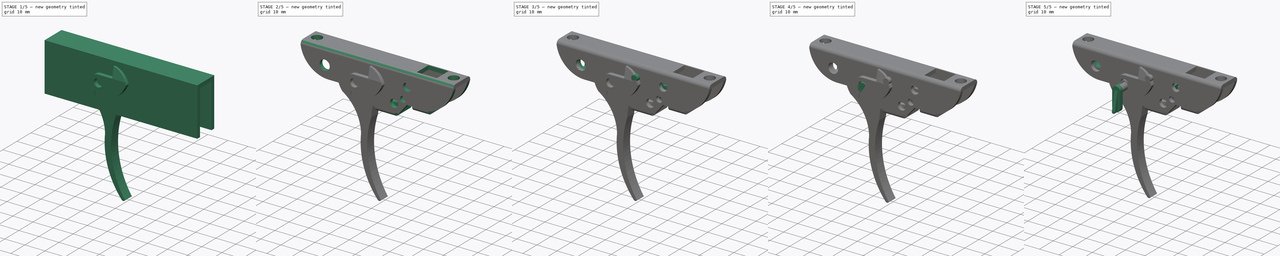
[diagram: build sequence overview — one tinted view per stage of 5, left to right]
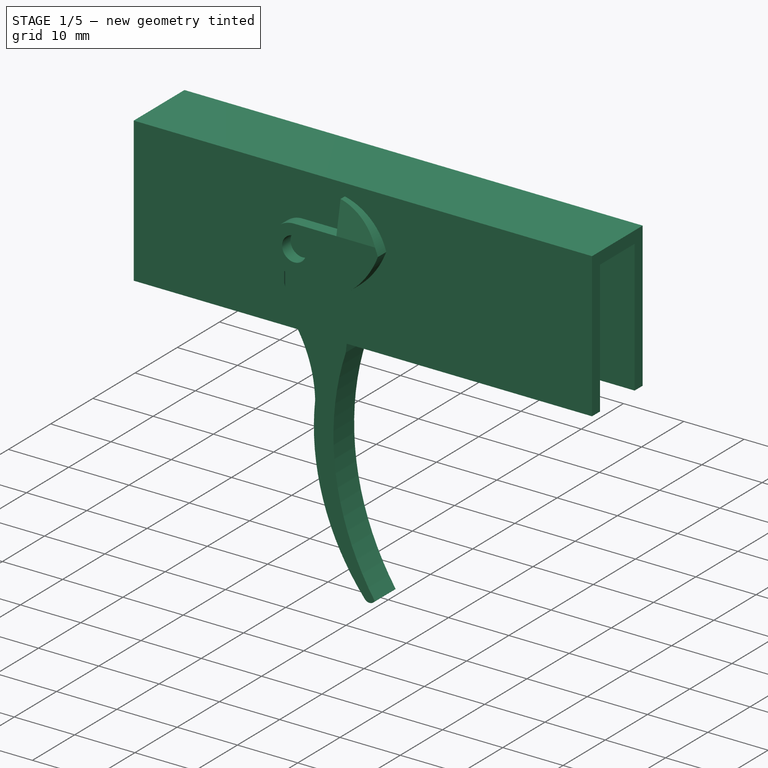
[diagram: stage 1 of 5 — iso view after this stage's code; geometry added in this stage tinted green]
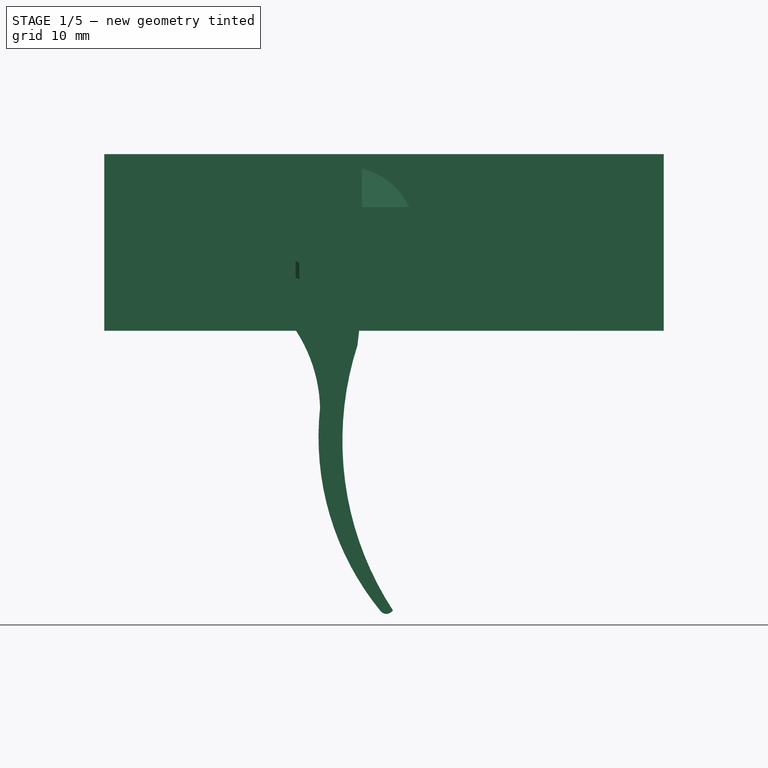
[diagram: stage 1 of 5 — front view after this stage's code; geometry added in this stage tinted green]
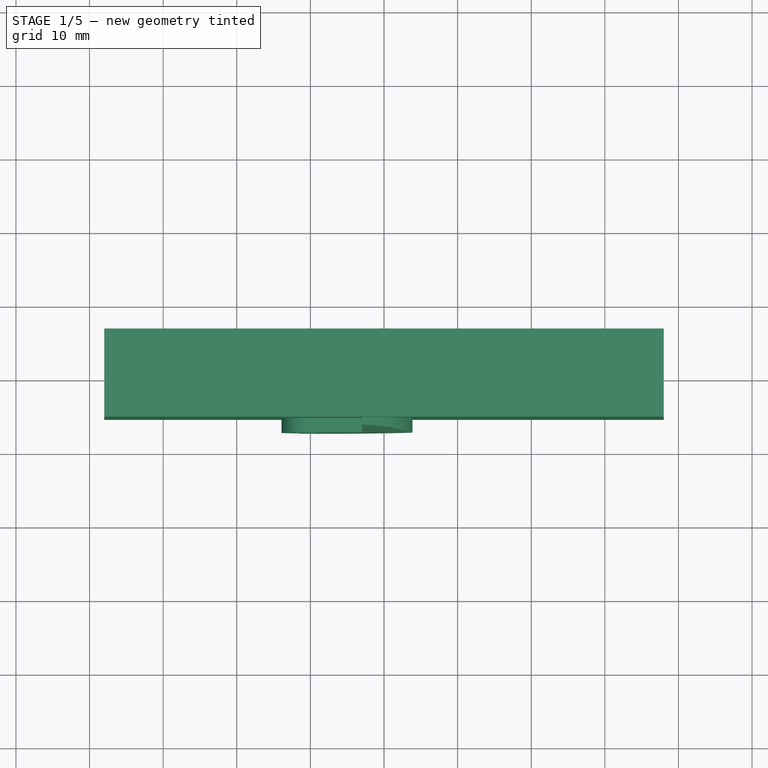
[diagram: stage 1 of 5 — top view after this stage's code; geometry added in this stage tinted green]
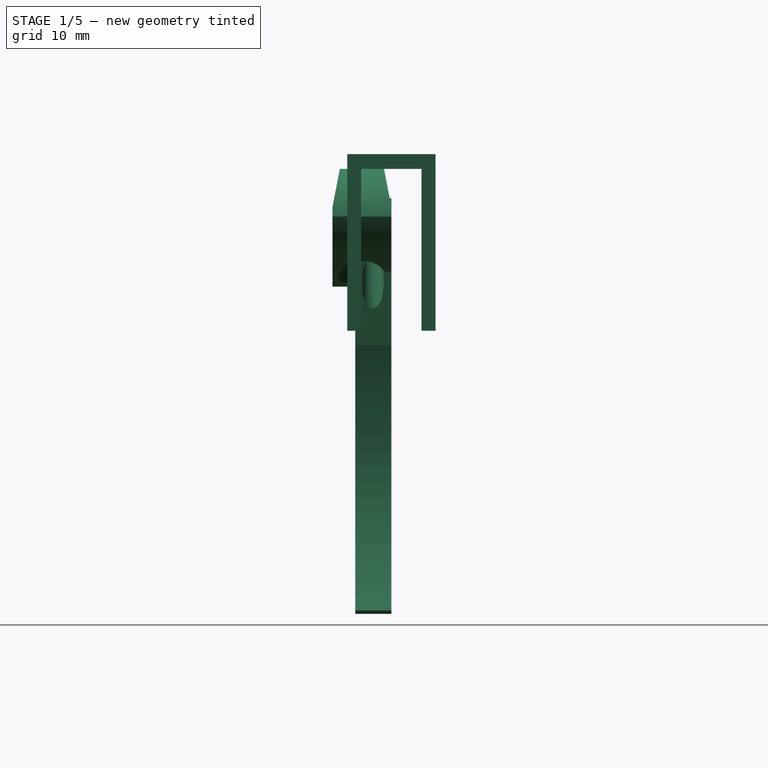
[diagram: stage 1 of 5 — right view after this stage's code; geometry added in this stage tinted green]
FCSTD DOCUMENT  (FreeCAD 1.0R39109 (Git))
Label: grilletto_v2
License: All rights reserved
LicenseURL: https://en.wikipedia.org/wiki/All_rights_reserved
objects: Sketcher::SketchObject×49, PartDesign::Pad×19, PartDesign::Pocket×17, PartDesign::Hole×13, PartDesign::Body×11, PartDesign::Fillet×8, PartDesign::Chamfer×4, App::Part×1
note: 292 computed .brp shape members not serialized (recipe doc carries the construction recipe); baked Part::Feature solids carry a one-line shape summary decoded from their .brp

FEATURE [Sketcher::SketchObject] Sketch003
  ArcFitTolerance = 1e-06
  AttachmentSupport = -> [XZ_Plane001]
  FullyConstrained = false
  MakeInternals = false
  MapMode = 5
  Placement = pos=(0,0,0) rot=(1,0,0;1.5708rad)
  sketch-geometry (14):
    g0: Circle CenterX=0 CenterY=0 CenterZ=0 NormalX=0 NormalY=0 NormalZ=1 AngleXU=0 Radius=2.5
    g1: ArcOfCircle CenterX=46.4359 CenterY=-26.9509 CenterZ=0 NormalX=0 NormalY=0 NormalZ=1 AngleXU=0 Radius=42.0884 StartAngle=2.82881 EndAngle=3.72113
    g2: ArcOfCircle CenterX=38.4359 CenterY=-26.4509 CenterZ=0 NormalX=0 NormalY=0 NormalZ=1 AngleXU=0 Radius=37.335 StartAngle=3.03413 EndAngle=3.85559
    g3: LineSegment StartX=10.2199 StartY=-50.9 StartZ=0 EndX=11.2199 EndY=-50 EndZ=0
    g4: ArcOfCircle CenterX=-18.8709 CenterY=-23.0197 CenterZ=0 NormalX=0 NormalY=0 NormalZ=1 AngleXU=0 Radius=20.1952 StartAngle=0.0283916 EndAngle=1.00239
    g5: LineSegment StartX=8 StartY=0 StartZ=0 EndX=6.38958 EndY=-14 EndZ=0
    g6: LineSegment StartX=-3.5 StartY=6 StartZ=0 EndX=6.16562 EndY=6 EndZ=0
    g7: ArcOfCircle CenterX=-3.5 CenterY=4 CenterZ=0 NormalX=0 NormalY=0 NormalZ=1 AngleXU=0 Radius=2 StartAngle=1.5708 EndAngle=2.8288
    g8: LineSegment [constr] StartX=-23.1878 StartY=0 StartZ=0 EndX=0 EndY=7.2 EndZ=0
    g9: ArcOfCircle CenterX=1.06233 CenterY=1.18744 CenterZ=0 NormalX=0 NormalY=0 NormalZ=1 AngleXU=0 Radius=11.5666 StartAngle=3.11457 EndAngle=3.81212
    g10: LineSegment StartX=8 StartY=0 StartZ=0 EndX=6.16562 EndY=6 EndZ=0
    g11: LineSegment StartX=-10.5 StartY=1.5 StartZ=0 EndX=-5.40296 EndY=2.94604 EndZ=0
    g12: LineSegment StartX=-5.40296 StartY=2.94604 StartZ=0 EndX=-5.40296 EndY=4.61543 EndZ=0
    g13: LineSegment [constr] StartX=-3.3335 StartY=6.68066 StartZ=0 EndX=6.35953 EndY=6.68066 EndZ=0
  constraints (37):
    c: Coincident(g0,g-1)
    c: Diameter(g0) = 5
    c: DistanceX(g2,g1) = 8
    c: Coincident(g2,g3)
    c: Coincident(g1,g3)
    c: Coincident(g4,g2)
    c: DistanceY(g1) = -50
    c: DistanceY(g2) = -50.9
    c: DistanceY(g1) = -14
    c: Coincident(g5,g1)
    c: DistanceX(g6) = -3.5
    c: DistanceX(g4) = -8
    c: DistanceY(g4) = -6
    c: Coincident(g7,g6)
    c: DistanceX(g7) = -3.5
    c: DistanceY(g7) = 4
    c: Angle(g-1,g8) = 0.301069
    c: PointOnObject(g8,g-1)
    c: PointOnObject(g8,g-2)
    c: DistanceY(g8) = 7.2
    c: DistanceX(g9) = -10.5
    c: DistanceY(g9) = 1.5
    c: Coincident(g9,g4)
    c: DistanceY(g5) = 0
    c: DistanceY(g6) = 6
    c: DistanceX(g5) = 8
    c: Coincident(g10,g5)
    c: Angle(g-1,g10) = 1.8675
    c: DistanceY(g10) = 6
    c: Coincident(g9,g11)
    c: Coincident(g11,g12)
    c: Coincident(g12,g7)
    c: Horizontal(g13)
    c: Coincident(g6,g10)
    c: DistanceX(g2,g1) = 1
    c: DistanceY(g1,g2) = 0.5
    c: Vertical(g12)
FEATURE [PartDesign::Pad] Pad001
  Direction = (0,-1,2e-16)
  Length = 4.9
  Length2 = 10
  Placement = pos=(0,0,0) rot=(1,0,0;1.5708rad)
  Profile = -> Sketch003
  ReferenceAxis = -> Sketch003 [N_Axis]
  Refine = true
  Suppressed = false
  Type = 0
FEATURE [PartDesign::Body] Body  label="barra"
  AllowCompound = false
  Group = -> [Sketch,Pad,Sketch001,Hole,Fillet,Sketch002,Pocket,Sketch004,Hole001,Sketch006,Pocket001,Fillet001]
  Origin = -> Origin
  Placement = pos=(0,0,-1) rot=(0,0,1;0rad)
  Tip = -> Fillet001
FEATURE [PartDesign::Pad] Pad002
  Direction = (0,-1,2e-16)
  Length = 8
  Length2 = 10
  Placement = pos=(0,0,0) rot=(1,0,0;1.5708rad)
  Profile = -> Sketch005
  ReferenceAxis = -> Sketch005 [N_Axis]
  Refine = true
  Suppressed = false
  Type = 0
FEATURE [PartDesign::Body] Body007  label="perno_grilletto"
  AllowCompound = false
  Group = -> [Sketch022,Pad011]
  Origin = -> Origin007
  Placement = pos=(3,4,4) rot=(0,0,1;0rad)
  Tip = -> Pad011
FEATURE [Sketcher::SketchObject] Sketch031
  ArcFitTolerance = 1e-06
  AttachmentSupport = -> [Pad002]
  FullyConstrained = true
  MakeInternals = false
  MapMode = 5
  Placement = pos=(0,2.1e-15,4.8) rot=(0,0,1;3.14159rad)
  sketch-geometry (1):
    g0: Circle CenterX=-6.5 CenterY=4 CenterZ=0 NormalX=0 NormalY=0 NormalZ=1 AngleXU=0 Radius=2.5
  constraints (3):
    c: Diameter(g0) = 5
    c: DistanceX(g0) = -6.5
    c: DistanceY(g0) = 4
FEATURE [PartDesign::Pocket] Pocket005
  BaseFeature = -> Pad002
  Direction = (0,0,-1)
  Length = 12
  Length2 = -3
  Placement = pos=(0,0,0) rot=(1,0,0;1.5708rad)
  Profile = -> Sketch031
  ReferenceAxis = -> Sketch031 [N_Axis]
  Refine = true
  Suppressed = false
  Type = 4
FEATURE [Sketcher::SketchObject] Sketch035
  ArcFitTolerance = 1e-06
  AttachmentSupport = -> [XY_Plane008]
  FullyConstrained = true
  MakeInternals = false
  MapMode = 5
  sketch-geometry (4):
    g0: LineSegment StartX=-28 StartY=6 StartZ=0 EndX=-28 EndY=-6 EndZ=0
    g1: LineSegment StartX=-28 StartY=-6 StartZ=0 EndX=48 EndY=-6 EndZ=0
    g2: LineSegment StartX=48 StartY=-6 StartZ=0 EndX=48 EndY=6 EndZ=0
    g3: LineSegment StartX=48 StartY=6 StartZ=0 EndX=-28 EndY=6 EndZ=0
  constraints (12):
    c: Coincident(g0,g1)
    c: Coincident(g1,g2)
    c: Coincident(g2,g3)
    c: Coincident(g3,g0)
    c: Vertical(g0)
    c: Vertical(g2)
    c: Horizontal(g1)
    c: Horizontal(g3)
    c: DistanceX(g3,g3) = 76
    c: DistanceY(g2,g2) = 12
    c: DistanceY(g2) = 6
    c: DistanceX(g0) = -28
FEATURE [PartDesign::Pad] Pad012
  Direction = (0,0,1)
  Length = 12
  Length2 = 12
  Profile = -> Sketch035
  ReferenceAxis = -> Sketch035 [N_Axis]
  Refine = true
  Suppressed = false
  Type = 4
FEATURE [Sketcher::SketchObject] Sketch036
  ArcFitTolerance = 1e-06
  AttachmentSupport = -> [Pad012]
  FullyConstrained = false
  MakeInternals = false
  MapMode = 5
  Placement = pos=(-28,0,0) rot=(0.57735,-0.57735,-0.57735;2.0944rad)
  sketch-geometry (4):
    g0: LineSegment StartX=-4.1 StartY=10 StartZ=0 EndX=-4.1 EndY=-13.6063 EndZ=0
    g1: LineSegment StartX=-4.1 StartY=-13.6063 StartZ=0 EndX=4.1 EndY=-13.6063 EndZ=0
    g2: LineSegment StartX=4.1 StartY=10 StartZ=0 EndX=-4.1 EndY=10 EndZ=0
    g3: LineSegment StartX=4.1 StartY=10 StartZ=0 EndX=4.1 EndY=-13.6063 EndZ=0
  constraints (11):
    c: Coincident(g0,g1)
    c: Coincident(g2,g0)
    c: Vertical(g0)
    c: Horizontal(g1)
    c: Horizontal(g2)
    c: DistanceX(g2,g2) = 8.2
    c: DistanceX(g2) = 4.1
    c: Coincident(g3,g2)
    c: Coincident(g3,g1)
    c: Vertical(g3)
    c: DistanceY(g2) = 10
FEATURE [PartDesign::Pocket] Pocket007
  BaseFeature = -> Pad012
  Direction = (1,0,0)
  Length = 5
  Length2 = 5
  Profile = -> Sketch036
  ReferenceAxis = -> Sketch036 [N_Axis]
  Refine = true
  Suppressed = false
  Type = 1
FEATURE [PartDesign::Body] Body009  label="barra_lamiera"
  AllowCompound = false
  Group = -> [Sketch056,Pad015,Sketch057,Pocket011,Sketch059,Pocket012,Sketch060,Hole028,Sketch061,Hole029,Sketch062,Hole030,Sketch066,Pocket014,Fillet004,Fillet005]
  Origin = -> Origin009
  Tip = -> Fillet005
FEATURE [PartDesign::Fillet] Fillet002
  Base = -> Pad001 [Edge8]
  BaseFeature = -> Pad001
  Placement = pos=(0,0,0) rot=(1,0,0;1.5708rad)
  Radius = 1
  Refine = true
  SupportTransform = false
  Suppressed = false
  UseAllEdges = false
FEATURE [Sketcher::SketchObject] Sketch071
  ArcFitTolerance = 1e-06
  AttachmentSupport = -> [Fillet002]
  FullyConstrained = true
  MakeInternals = false
  MapMode = 5
  Placement = pos=(-1.176,1.9e-15,4.14523) rot=(-0.137779,0,0.990463;3.14159rad)
  sketch-geometry (1):
    g0: Circle CenterX=6.8 CenterY=2.5 CenterZ=0 NormalX=0 NormalY=0 NormalZ=1 AngleXU=0 Radius=1.5
  constraints (3):
    c: Diameter(g0) = 3
    c: DistanceX(g0) = 6.8
    c: DistanceY(g0) = 2.5
FEATURE [PartDesign::Hole] Hole034
  BaseFeature = -> Fillet002
  CustomThreadClearance = 0
  Depth = 20
  DepthType = 0
  Diameter = 3.4
  DrillForDepth = false
  DrillPoint = 1
  DrillPointAngle = 118
  HoleCutCountersinkAngle = 90
  HoleCutCustomValues = false
  HoleCutDepth = 0
  HoleCutDiameter = 6.1
  HoleCutType = 0
  ModelThread = false
  Placement = pos=(0,0,0) rot=(1,0,0;1.5708rad)
  Profile = -> Sketch071
  Refine = true
  Suppressed = false
  Tapered = false
  TaperedAngle = 90
  ThreadClass = 0
  ThreadDepth = 20
  ThreadDepthType = 0
  ThreadDirection = 0
  ThreadFit = 0
  ThreadSize = 9
  ThreadType = 1
  Threaded = false
  UseCustomThreadClearance = false
FEATURE [Sketcher::SketchObject] Sketch072
  ArcFitTolerance = 1e-06
  AttachmentSupport = -> [Hole034]
  FullyConstrained = true
  MakeInternals = false
  MapMode = 5
  Placement = pos=(0,2.6e-15,6) rot=(0,0,1;3.14159rad)
  sketch-geometry (1):
    g0: Circle CenterX=-4 CenterY=2.5 CenterZ=0 NormalX=0 NormalY=0 NormalZ=1 AngleXU=0 Radius=1.5
  constraints (3):
    c: Diameter(g0) = 3
    c: DistanceY(g0) = 2.5
    c: DistanceX(g0) = -4
FEATURE [PartDesign::Pocket] Pocket016
  BaseFeature = -> Hole034
  Direction = (0.3,0,-1)
  Length = 5
  Length2 = 5
  Placement = pos=(0,0,0) rot=(1,0,0;1.5708rad)
  Profile = -> Sketch072
  ReferenceAxis = -> Sketch072 [N_Axis]
  Refine = true
  Suppressed = false
  Type = 1
  UseCustomVector = true
FEATURE [PartDesign::Body] Body012  label="sicura"
  AllowCompound = false
  Group = -> [Sketch075,Pad020,Sketch076,Pad021,Sketch077,Pad022,Sketch078,Pocket019,Sketch079,Pocket020]
  Origin = -> Origin012
  Placement = pos=(18.5,6,-4) rot=(0,1,0;1.5708rad)
  Tip = -> Pocket020
FEATURE [PartDesign::Fillet] Fillet007
  Base = -> Pocket016 [Edge37]
  BaseFeature = -> Pocket016
  Placement = pos=(0,0,0) rot=(1,0,0;1.5708rad)
  Radius = 0.6
  Refine = true
  SupportTransform = false
  Suppressed = false
  UseAllEdges = false
FEATURE [PartDesign::Body] Body001  label="grilletto"
  AllowCompound = false
  Group = -> [Sketch003,Pad001,Fillet002,Sketch071,Hole034,Sketch072,Pocket016,Fillet007]
  Origin = -> Origin001
  Placement = pos=(3,2.5,4) rot=(0,1,0;0.261799rad)
  Tip = -> Fillet007
FEATURE [PartDesign::Chamfer] Chamfer002
  Angle = 60
  Base = -> Pocket005 [Edge24]
  BaseFeature = -> Pocket005
  ChamferType = 2
  FlipDirection = false
  Placement = pos=(0,0,0) rot=(1,0,0;1.5708rad)
  Refine = true
  Size = 0.8
  Size2 = 1
  SupportTransform = false
  Suppressed = false
  UseAllEdges = false
FEATURE [Sketcher::SketchObject] Sketch080
  ArcFitTolerance = 1e-06
  AttachmentSupport = -> [Chamfer002]
  ExternalGeometry = -> [Chamfer002]
  FullyConstrained = false
  MakeInternals = false
  MapMode = 5
  Placement = pos=(7,0,0) rot=(0.707107,0,-0.707107;3.14159rad)
  sketch-geometry (6):
    g0: LineSegment StartX=-4.8 StartY=8 StartZ=0 EndX=-10 EndY=7 EndZ=0
    g1: LineSegment StartX=-10 StartY=1 StartZ=0 EndX=-4.8 EndY=0 EndZ=0
    g2: LineSegment StartX=-4.8 StartY=8 StartZ=0 EndX=-11.753 EndY=10.9525 EndZ=0
    g3: LineSegment StartX=-11.753 StartY=10.9525 StartZ=0 EndX=-12.7029 EndY=-2.88753 EndZ=0
    g4: LineSegment StartX=-12.7029 StartY=-2.88753 StartZ=0 EndX=-4.8 EndY=0 EndZ=0
    g5: LineSegment StartX=-10 StartY=7 StartZ=0 EndX=-10 EndY=1 EndZ=0
  constraints (11):
    c: Coincident(g0,g-4)
    c: DistanceY(g1) = 1
    c: DistanceY(g0) = 7
    c: Coincident(g0,g2)
    c: Coincident(g2,g3)
    c: Coincident(g3,g4)
    c: Coincident(g4,g1)
    c: Coincident(g1,g-6)
    c: Coincident(g5,g0)
    c: Coincident(g5,g1)
    c: Vertical(g5)
FEATURE [PartDesign::Pocket] Pocket021
  BaseFeature = -> Chamfer002
  Direction = (1,0,2e-16)
  Length = 5
  Length2 = 5
  Placement = pos=(0,0,0) rot=(1,0,0;1.5708rad)
  Profile = -> Sketch080
  ReferenceAxis = -> Sketch080 [N_Axis]
  Refine = true
  Suppressed = false
  Type = 1
FEATURE [Sketcher::SketchObject] Sketch081
  ArcFitTolerance = 1e-06
  AttachmentSupport = -> [Pocket021]
  ExternalGeometry = -> [Pocket021]
  FullyConstrained = true
  MakeInternals = false
  MapMode = 5
  Placement = pos=(-2,0,0) rot=(0.707107,0,-0.707107;3.14159rad)
FEATURE [PartDesign::Chamfer] Chamfer003
  Angle = 45
  Base = -> Pocket021 [Edge18,Edge12]
  BaseFeature = -> Pocket021
  ChamferType = 0
  FlipDirection = false
  Placement = pos=(0,0,0) rot=(1,0,0;1.5708rad)
  Refine = true
  Size = 0.5
  Size2 = 1
  SupportTransform = false
  Suppressed = false
  UseAllEdges = false
FEATURE [PartDesign::Body] Body003  label="dente"
  AllowCompound = false
  Group = -> [Sketch005,Pad002,Sketch031,Pocket005,Chamfer002,Sketch080,Pocket021,Sketch081,Chamfer003]
  Origin = -> Origin003
  Placement = pos=(25,4,4) rot=(0,0,1;0rad)
  Tip = -> Chamfer003
FEATURE [App::Part] Part  label="parte"
  Group = -> [Body001,Body003,Body005,Body006,Body007,Body008,Body009,Body010,Body011]
  Origin = -> Origin013
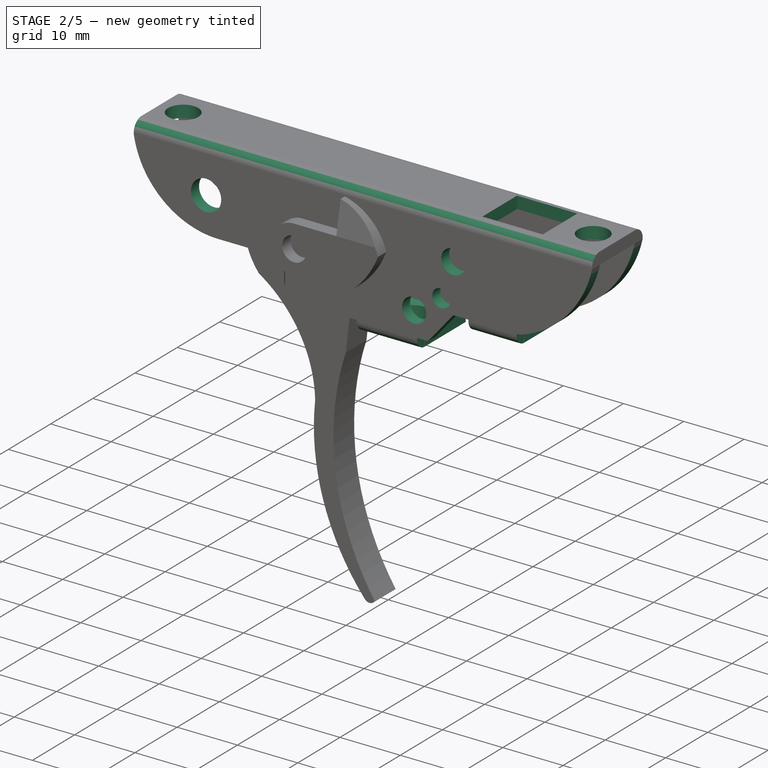
[diagram: stage 2 of 5 — iso view after this stage's code; geometry added in this stage tinted green]
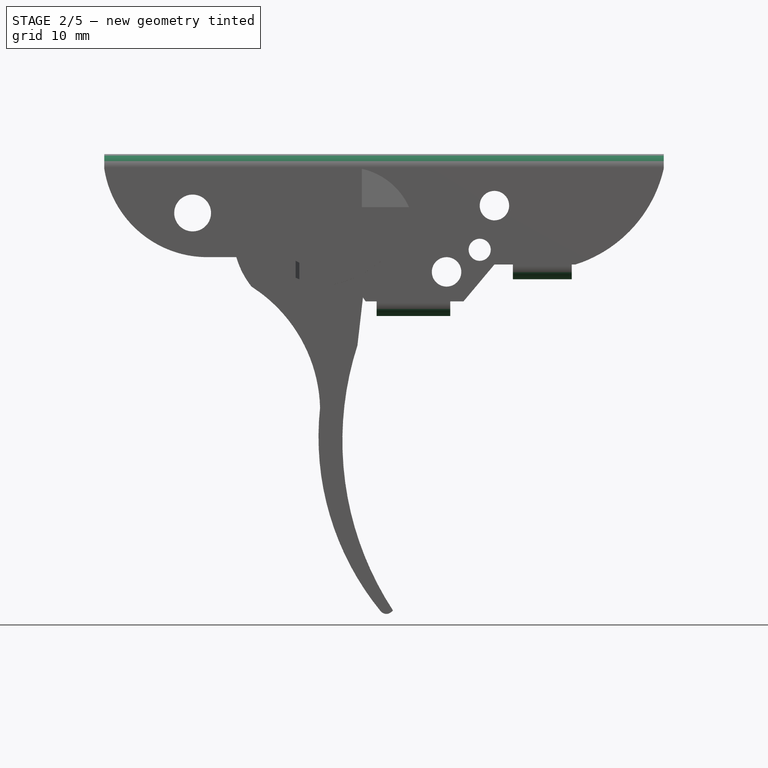
[diagram: stage 2 of 5 — front view after this stage's code; geometry added in this stage tinted green]
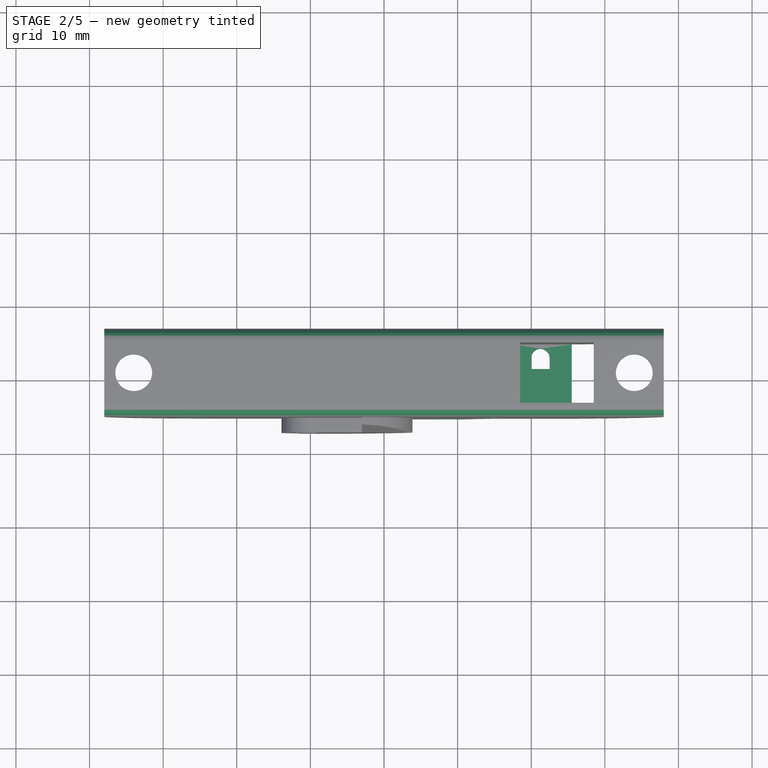
[diagram: stage 2 of 5 — top view after this stage's code; geometry added in this stage tinted green]
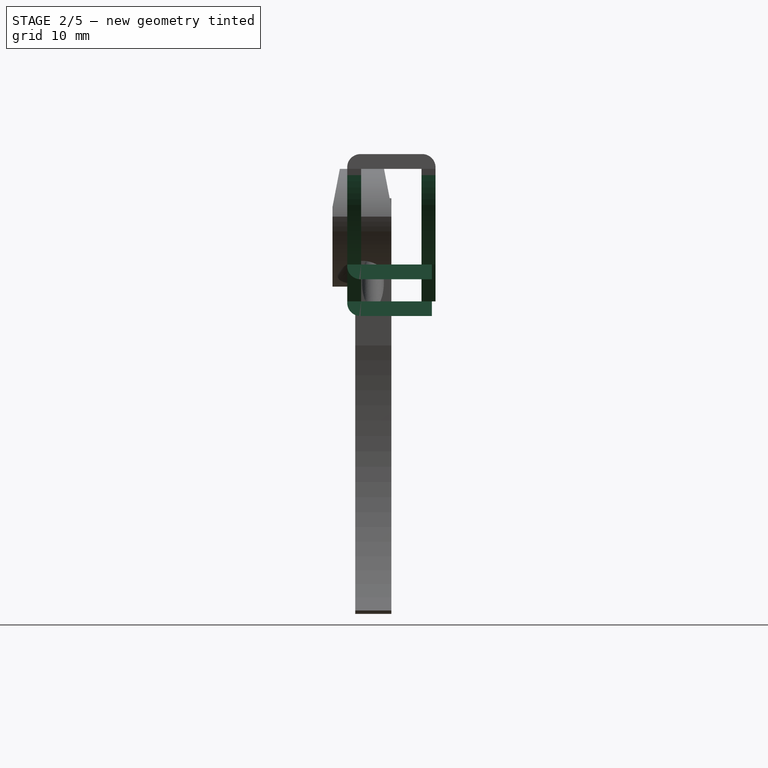
[diagram: stage 2 of 5 — right view after this stage's code; geometry added in this stage tinted green]
FEATURE [Sketcher::SketchObject] Sketch037
  ArcFitTolerance = 1e-06
  AttachmentSupport = -> [Pocket007]
  FullyConstrained = false
  MakeInternals = false
  MapMode = 5
  Placement = pos=(0,-6,0) rot=(1,0,0;1.5708rad)
  sketch-geometry (12):
    g0: LineSegment StartX=58.2237 StartY=-19.1669 StartZ=0 EndX=-32.8112 EndY=-19.1669 EndZ=0
    g1: LineSegment StartX=-32.8112 StartY=-19.1669 StartZ=0 EndX=-28 EndY=10 EndZ=0
    g2: LineSegment StartX=7.5 StartY=-8 StartZ=0 EndX=20.8045 EndY=-8 EndZ=0
    g3: LineSegment StartX=20.8045 StartY=-8 StartZ=0 EndX=25 EndY=-3 EndZ=0
    g4: LineSegment StartX=48 StartY=10 StartZ=0 EndX=58.2237 EndY=-19.1669 EndZ=0
    g5: LineSegment StartX=25 StartY=-3 StartZ=0 EndX=36 EndY=-3 EndZ=0
    g6: GeomPoint X=36 Y=0 Z=0
    g7: GeomPoint X=-14 Y=-2 Z=0
    g8: ArcOfCircle CenterX=-14 CenterY=12.1667 CenterZ=0 NormalX=0 NormalY=0 NormalZ=1 AngleXU=0 Radius=14.1667 StartAngle=3.29514 EndAngle=4.71239
    g9: ArcOfCircle CenterX=30.625 CenterY=14 CenterZ=0 NormalX=0 NormalY=0 NormalZ=1 AngleXU=0 Radius=17.8295 StartAngle=5.01862 EndAngle=6.05691
    g10: LineSegment StartX=-14 StartY=-2 StartZ=0 EndX=3.29875 EndY=-2 EndZ=0
    g11: LineSegment StartX=3.29875 StartY=-2 StartZ=0 EndX=7.5 EndY=-8 EndZ=0
  constraints (32):
    c: Horizontal(g0)
    c: Coincident(g0,g1)
    c: Coincident(g2,g3)
    c: Coincident(g4,g0)
    c: Horizontal(g2)
    c: DistanceY(g4) = 10
    c: DistanceX(g4) = 48
    c: DistanceX(g1) = -28
    c: DistanceY(g1) = 10
    c: DistanceY(g2) = -8
    c: DistanceX(g3) = 25
    c: Coincident(g3,g5)
    c: Horizontal(g5)
    c: DistanceX(g6) = 36
    c: DistanceY(g6) = 0
    c: DistanceY(g3) = -3
    c: Angle(g3,g-2) = 0.698132
    c: Coincident(g8,g1)
    c: Coincident(g8,g7)
    c: DistanceX(g8) = -14
    c: DistanceY(g7) = -2
    c: DistanceX(g5) = 36
    c: Coincident(g9,g5)
    c: Coincident(g9,g4)
    c: DistanceY(g9) = 14
    c: DistanceX(g7) = -14
    c: DistanceX(g2) = 7.5
    c: Coincident(g10,g7)
    c: Horizontal(g10)
    c: Coincident(g11,g10)
    c: Coincident(g11,g2)
    c: Angle(g-2,g11) = 0.610865
FEATURE [PartDesign::Pocket] Pocket008  label="faccia"
  BaseFeature = -> Pocket007
  Direction = (0,1,-2e-16)
  Length = 2
  Length2 = 5
  Profile = -> Sketch037
  ReferenceAxis = -> Sketch037 [N_Axis]
  Refine = true
  Suppressed = false
  Type = 1
FEATURE [Sketcher::SketchObject] Sketch039
  ArcFitTolerance = 1e-06
  FullyConstrained = true
  MakeInternals = false
  MapMode = 5
  Placement = pos=(0,-1.8e-15,-8) rot=(1,0,0;3.14159rad)
  sketch-geometry (4):
    g0: LineSegment StartX=9 StartY=6 StartZ=0 EndX=9 EndY=-5.5 EndZ=0
    g1: LineSegment StartX=9 StartY=-5.5 StartZ=0 EndX=19 EndY=-5.5 EndZ=0
    g2: LineSegment StartX=19 StartY=-5.5 StartZ=0 EndX=19 EndY=6 EndZ=0
    g3: LineSegment StartX=19 StartY=6 StartZ=0 EndX=9 EndY=6 EndZ=0
  constraints (12):
    c: Coincident(g0,g1)
    c: Coincident(g1,g2)
    c: Coincident(g2,g3)
    c: Coincident(g3,g0)
    c: Vertical(g0)
    c: Vertical(g2)
    c: Horizontal(g1)
    c: Horizontal(g3)
    c: DistanceX(g3,g3) = 10
    c: DistanceY(g2,g2) = 11.5
    c: DistanceY(g2) = 6
    c: DistanceX(g0) = 9
FEATURE [PartDesign::Pad] Pad013  label="moll_barra"
  BaseFeature = -> Pocket008
  Direction = (0,-1e-16,-1)
  Length = 2
  Length2 = 10
  Profile = -> Sketch039
  ReferenceAxis = -> Sketch039 [N_Axis]
  Refine = true
  Suppressed = false
  Type = 0
FEATURE [Sketcher::SketchObject] Sketch040
  ArcFitTolerance = 1e-06
  AttachmentSupport = -> [Pad013]
  FullyConstrained = true
  MakeInternals = false
  MapMode = 5
  Placement = pos=(0,-7e-16,-3) rot=(1,0,0;3.14159rad)
  sketch-geometry (4):
    g0: LineSegment StartX=27.5 StartY=6 StartZ=0 EndX=27.5 EndY=-5.5 EndZ=0
    g1: LineSegment StartX=27.5 StartY=-5.5 StartZ=0 EndX=35.5 EndY=-5.5 EndZ=0
    g2: LineSegment StartX=35.5 StartY=-5.5 StartZ=0 EndX=35.5 EndY=6 EndZ=0
    g3: LineSegment StartX=35.5 StartY=6 StartZ=0 EndX=27.5 EndY=6 EndZ=0
  constraints (12):
    c: Coincident(g0,g1)
    c: Coincident(g1,g2)
    c: Coincident(g2,g3)
    c: Coincident(g3,g0)
    c: Vertical(g0)
    c: Vertical(g2)
    c: Horizontal(g1)
    c: Horizontal(g3)
    c: DistanceX(g3,g3) = 8
    c: DistanceY(g2) = 6
    c: DistanceY(g2,g2) = 11.5
    c: DistanceX(g0) = 27.5
FEATURE [PartDesign::Pad] Pad014  label="moll_dente"
  BaseFeature = -> Pad013
  Direction = (0,0,-1)
  Length = 2
  Length2 = 10
  Profile = -> Sketch040
  ReferenceAxis = -> Sketch040 [N_Axis]
  Refine = true
  Suppressed = false
  Type = 0
FEATURE [Sketcher::SketchObject] Sketch041
  ArcFitTolerance = 1e-06
  AttachmentSupport = -> [Pad014]
  FullyConstrained = true
  MakeInternals = false
  MapMode = 5
  Placement = pos=(0,0,12) rot=(0,0,1;0rad)
  sketch-geometry (4):
    g0: LineSegment StartX=28.5 StartY=4.1 StartZ=0 EndX=28.5 EndY=-4.1 EndZ=0
    g1: LineSegment StartX=28.5 StartY=-4.1 StartZ=0 EndX=38.5 EndY=-4.1 EndZ=0
    g2: LineSegment StartX=38.5 StartY=-4.1 StartZ=0 EndX=38.5 EndY=4.1 EndZ=0
    g3: LineSegment StartX=38.5 StartY=4.1 StartZ=0 EndX=28.5 EndY=4.1 EndZ=0
  constraints (12):
    c: Coincident(g0,g1)
    c: Coincident(g1,g2)
    c: Coincident(g2,g3)
    c: Coincident(g3,g0)
    c: Vertical(g0)
    c: Vertical(g2)
    c: Horizontal(g1)
    c: Horizontal(g3)
    c: DistanceX(g3,g3) = 10
    c: DistanceY(g2,g2) = 8.2
    c: DistanceY(g2) = 4.1
    c: DistanceX(g2) = 38.5
FEATURE [PartDesign::Pocket] Pocket010  label="top"
  BaseFeature = -> Pad014
  Direction = (0,0,-1)
  Length = 2
  Length2 = 5
  Profile = -> Sketch041
  ReferenceAxis = -> Sketch041 [N_Axis]
  Refine = true
  Suppressed = false
  Type = 0
FEATURE [Sketcher::SketchObject] Sketch052
  ArcFitTolerance = 1e-06
  FullyConstrained = true
  MakeInternals = false
  MapMode = 5
  Placement = pos=(0,-6,0) rot=(1,0,0;1.5708rad)
  sketch-geometry (1):
    g0: Circle CenterX=-16 CenterY=4 CenterZ=0 NormalX=0 NormalY=0 NormalZ=1 AngleXU=0 Radius=2.5
  constraints (3):
    c: Diameter(g0) = 5
    c: DistanceX(g0) = -16
    c: DistanceY(g0) = 4
FEATURE [Sketcher::SketchObject] Sketch050
  ArcFitTolerance = 1e-06
  FullyConstrained = true
  MakeInternals = false
  MapMode = 5
  Placement = pos=(0,0,-10) rot=(1,0,0;3.14159rad)
  sketch-geometry (1):
    g0: Circle CenterX=14 CenterY=0 CenterZ=0 NormalX=0 NormalY=0 NormalZ=1 AngleXU=0 Radius=2.5
  constraints (3):
    c: Diameter(g0) = 5
    c: PointOnObject(g0,g-1)
    c: DistanceX(g0) = 14
FEATURE [PartDesign::Hole] Hole022  label="f_molla_barra"
  BaseFeature = -> Pocket010
  CustomThreadClearance = 0
  Depth = 3
  DepthType = 0
  Diameter = 5.5
  DrillForDepth = false
  DrillPoint = 1
  DrillPointAngle = 118
  HoleCutCountersinkAngle = 90
  HoleCutCustomValues = false
  HoleCutDepth = 0
  HoleCutDiameter = 6.1
  HoleCutType = 0
  ModelThread = false
  Profile = -> Sketch050
  Refine = true
  Suppressed = false
  Tapered = false
  TaperedAngle = 90
  ThreadClass = 0
  ThreadDepth = 3
  ThreadDepthType = 0
  ThreadDirection = 0
  ThreadFit = 0
  ThreadSize = 13
  ThreadType = 1
  Threaded = false
  UseCustomThreadClearance = false
FEATURE [Sketcher::SketchObject] Sketch051
  ArcFitTolerance = 1e-06
  AttachmentSupport = -> [Hole022]
  FullyConstrained = true
  MakeInternals = false
  MapMode = 5
  Placement = pos=(0,0,-5) rot=(1,0,0;3.14159rad)
  sketch-geometry (4):
    g0: LineSegment StartX=30 StartY=-0.75 StartZ=0 EndX=30 EndY=-2.25 EndZ=0
    g1: LineSegment StartX=32.5 StartY=-2.25 StartZ=0 EndX=32.5 EndY=-0.75 EndZ=0
    g2: LineSegment StartX=32.5 StartY=-0.75 StartZ=0 EndX=30 EndY=-0.75 EndZ=0
    g3: ArcOfCircle CenterX=31.25 CenterY=-2.25 CenterZ=0 NormalX=0 NormalY=0 NormalZ=1 AngleXU=0 Radius=1.25 StartAngle=3.14159 EndAngle=6.28319
  constraints (13):
    c: Coincident(g1,g2)
    c: Coincident(g2,g0)
    c: Vertical(g0)
    c: Vertical(g1)
    c: Horizontal(g2)
    c: Distance(g0,g1) = 2.5
    c: DistanceY(g1,g1) = 1.5
    c: DistanceY(g0) = -0.75
    c: Coincident(g3,g0)
    c: DistanceY(g3,g0) = 1.5
    c: DistanceX(g0) = 30
    c: Coincident(g3,g1)
    c: DistanceY(g0,g0) = 1.5
FEATURE [PartDesign::Hole] Hole024  label="foro_barra"
  BaseFeature = -> Hole022
  CustomThreadClearance = 0
  Depth = 157.819
  DepthType = 1
  Diameter = 5
  DrillForDepth = false
  DrillPoint = 1
  DrillPointAngle = 118
  HoleCutCountersinkAngle = 90
  HoleCutCustomValues = false
  HoleCutDepth = 0
  HoleCutDiameter = 6.1
  HoleCutType = 0
  ModelThread = false
  Profile = -> Sketch052
  Refine = true
  Suppressed = false
  Tapered = false
  TaperedAngle = 90
  ThreadClass = 0
  ThreadDepth = 157.819
  ThreadDepthType = 0
  ThreadDirection = 0
  ThreadFit = 0
  ThreadSize = 0
  ThreadType = 0
  Threaded = false
  UseCustomThreadClearance = false
FEATURE [Sketcher::SketchObject] Sketch053
  ArcFitTolerance = 1e-06
  AttachmentSupport = -> [Hole024]
  FullyConstrained = true
  MakeInternals = false
  MapMode = 5
  Placement = pos=(0,-6,0) rot=(1,0,0;1.5708rad)
  sketch-geometry (1):
    g0: Circle CenterX=25 CenterY=5 CenterZ=0 NormalX=0 NormalY=0 NormalZ=1 AngleXU=0 Radius=2
  constraints (3):
    c: Diameter(g0) = 4
    c: DistanceY(g0) = 5
    c: DistanceX(g0) = 25
FEATURE [PartDesign::Hole] Hole025  label="foro_dente"
  BaseFeature = -> Hole024
  CustomThreadClearance = 0
  Depth = 157.819
  DepthType = 1
  Diameter = 4
  DrillForDepth = false
  DrillPoint = 1
  DrillPointAngle = 118
  HoleCutCountersinkAngle = 90
  HoleCutCustomValues = false
  HoleCutDepth = 0
  HoleCutDiameter = 6.1
  HoleCutType = 0
  ModelThread = false
  Profile = -> Sketch053
  Refine = true
  Suppressed = false
  Tapered = false
  TaperedAngle = 90
  ThreadClass = 0
  ThreadDepth = 157.819
  ThreadDepthType = 0
  ThreadDirection = 0
  ThreadFit = 0
  ThreadSize = 0
  ThreadType = 0
  Threaded = false
  UseCustomThreadClearance = false
FEATURE [Sketcher::SketchObject] Sketch054
  ArcFitTolerance = 1e-06
  AttachmentSupport = -> [Hole025]
  FullyConstrained = true
  MakeInternals = false
  MapMode = 5
  Placement = pos=(0,-6,0) rot=(1,0,0;1.5708rad)
  sketch-geometry (1):
    g0: Circle CenterX=23 CenterY=-1 CenterZ=0 NormalX=0 NormalY=0 NormalZ=1 AngleXU=0 Radius=1.5
  constraints (3):
    c: Diameter(g0) = 3
    c: DistanceY(g0) = -1
    c: DistanceX(g0) = 23
FEATURE [PartDesign::Hole] Hole026  label="vista001"
  BaseFeature = -> Hole025
  CustomThreadClearance = 0
  Depth = 157.819
  DepthType = 1
  Diameter = 3
  DrillForDepth = false
  DrillPoint = 1
  DrillPointAngle = 118
  HoleCutCountersinkAngle = 90
  HoleCutCustomValues = false
  HoleCutDepth = 0
  HoleCutDiameter = 6.1
  HoleCutType = 0
  ModelThread = false
  Profile = -> Sketch054
  Refine = true
  Suppressed = false
  Tapered = false
  TaperedAngle = 90
  ThreadClass = 0
  ThreadDepth = 157.819
  ThreadDepthType = 0
  ThreadDirection = 0
  ThreadFit = 0
  ThreadSize = 0
  ThreadType = 0
  Threaded = false
  UseCustomThreadClearance = false
FEATURE [Sketcher::SketchObject] Sketch055
  ArcFitTolerance = 1e-06
  AttachmentSupport = -> [Hole026]
  FullyConstrained = true
  MakeInternals = false
  MapMode = 5
  Placement = pos=(0,-6,0) rot=(1,0,0;1.5708rad)
  sketch-geometry (1):
    g0: Circle CenterX=18.5 CenterY=-4 CenterZ=0 NormalX=0 NormalY=0 NormalZ=1 AngleXU=0 Radius=2
  constraints (3):
    c: Diameter(g0) = 4
    c: DistanceY(g0) = -4
    c: DistanceX(g0) = 18.5
FEATURE [PartDesign::Hole] Hole027  label="foro_sicura"
  BaseFeature = -> Hole026
  CustomThreadClearance = 0
  Depth = 157.819
  DepthType = 1
  Diameter = 4
  DrillForDepth = false
  DrillPoint = 1
  DrillPointAngle = 118
  HoleCutCountersinkAngle = 90
  HoleCutCustomValues = false
  HoleCutDepth = 0
  HoleCutDiameter = 6.1
  HoleCutType = 0
  ModelThread = false
  Profile = -> Sketch055
  Refine = true
  Suppressed = false
  Tapered = false
  TaperedAngle = 90
  ThreadClass = 0
  ThreadDepth = 157.819
  ThreadDepthType = 0
  ThreadDirection = 0
  ThreadFit = 0
  ThreadSize = 0
  ThreadType = 0
  Threaded = false
  UseCustomThreadClearance = false
FEATURE [PartDesign::Fillet] Fillet003
  Base = -> Hole027 [Edge17,Edge36,Edge24,Edge27]
  BaseFeature = -> Hole027
  Radius = 1.8
  Refine = true
  SupportTransform = false
  Suppressed = false
  UseAllEdges = false
FEATURE [PartDesign::Body] Body011  label="perno_barra_lamiera"
  AllowCompound = false
  Group = -> [Sketch069,Pad017,Pad018]
  Origin = -> Origin011
  Placement = pos=(2,4,0) rot=(0,0,1;0rad)
  Tip = -> Pad018
FEATURE [Sketcher::SketchObject] Sketch070
  ArcFitTolerance = 1e-06
  AttachmentSupport = -> [Fillet003]
  FullyConstrained = true
  MakeInternals = false
  MapMode = 5
  Placement = pos=(0,0,10) rot=(1,0,0;3.14159rad)
  sketch-geometry (2):
    g0: Circle CenterX=44 CenterY=0 CenterZ=0 NormalX=0 NormalY=0 NormalZ=1 AngleXU=0 Radius=2
    g1: Circle CenterX=-24 CenterY=0 CenterZ=0 NormalX=0 NormalY=0 NormalZ=1 AngleXU=0 Radius=2
  constraints (6):
    c: Diameter(g0) = 4
    c: PointOnObject(g0,g-1)
    c: Diameter(g1) = 4
    c: PointOnObject(g1,g-1)
    c: DistanceX(g1) = -24
    c: DistanceX(g0) = 44
FEATURE [PartDesign::Hole] Hole033  label="fori_fissaggio"
  BaseFeature = -> Fillet003
  CustomThreadClearance = 0
  Depth = 25
  DepthType = 0
  Diameter = 5
  DrillForDepth = false
  DrillPoint = 1
  DrillPointAngle = 118
  HoleCutCountersinkAngle = 90
  HoleCutCustomValues = false
  HoleCutDepth = 0
  HoleCutDiameter = 6.1
  HoleCutType = 0
  ModelThread = false
  Profile = -> Sketch070
  Refine = true
  Suppressed = false
  Tapered = false
  TaperedAngle = 90
  ThreadClass = 0
  ThreadDepth = 25
  ThreadDepthType = 0
  ThreadDirection = 0
  ThreadFit = 0
  ThreadSize = 0
  ThreadType = 0
  Threaded = false
  UseCustomThreadClearance = false
FEATURE [PartDesign::Pocket] Pocket017
  BaseFeature = -> Hole033
  Direction = (0,0,1)
  Length = 2
  Length2 = 5
  Profile = -> Sketch051
  ReferenceAxis = -> Sketch051 [N_Axis]
  Refine = true
  Suppressed = false
  Type = 0
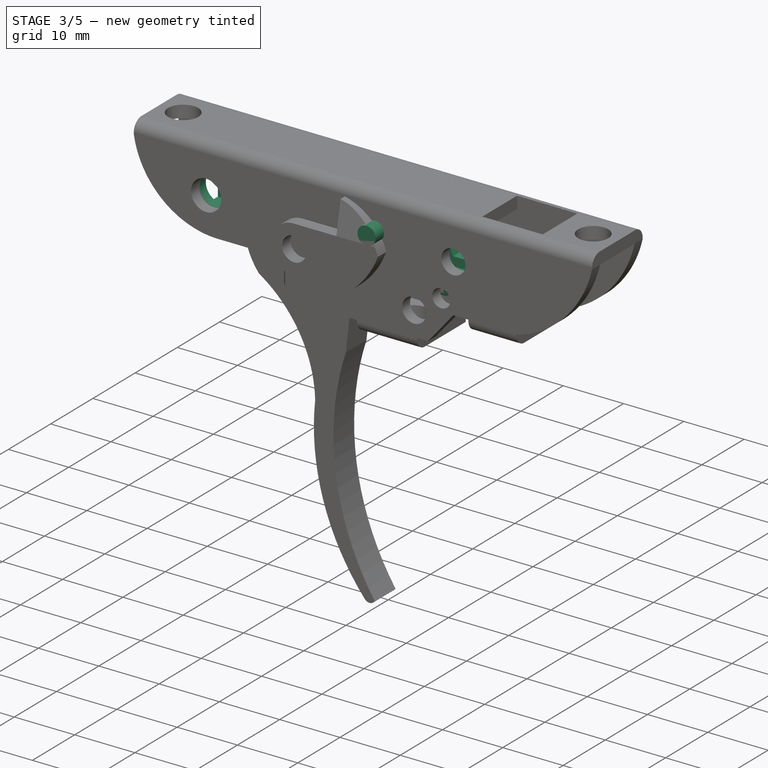
[diagram: stage 3 of 5 — iso view after this stage's code; geometry added in this stage tinted green]
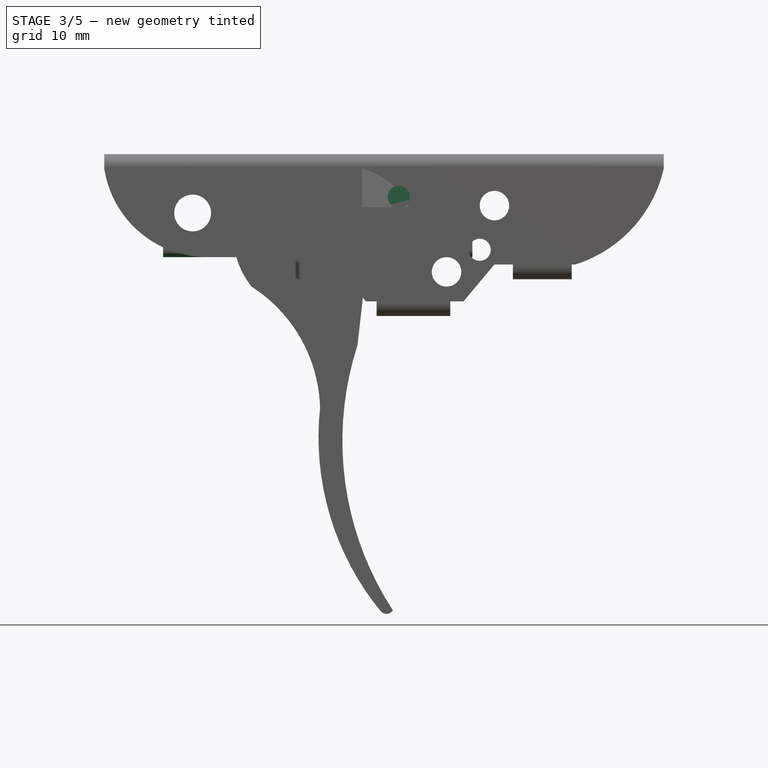
[diagram: stage 3 of 5 — front view after this stage's code; geometry added in this stage tinted green]
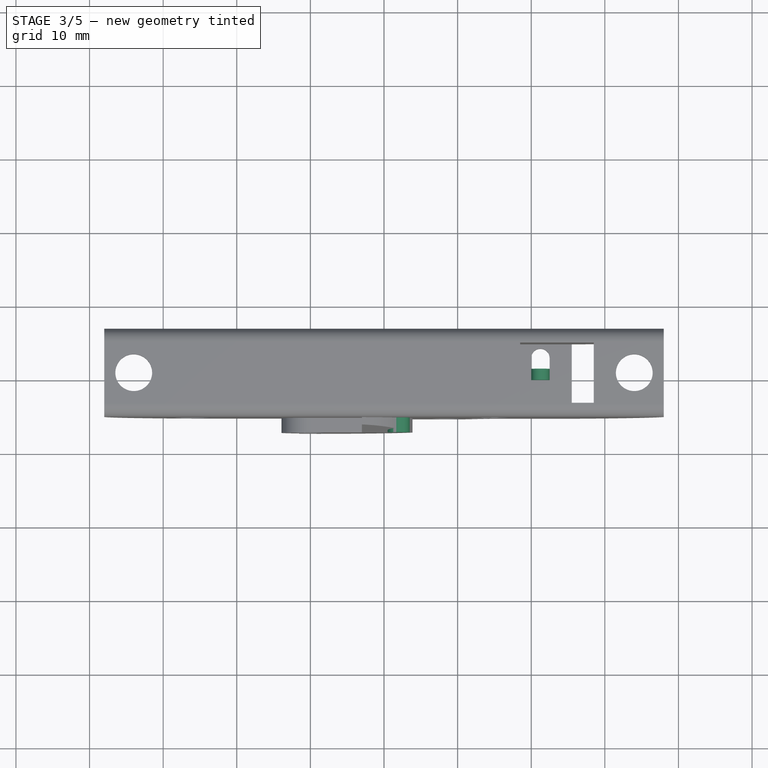
[diagram: stage 3 of 5 — top view after this stage's code; geometry added in this stage tinted green]
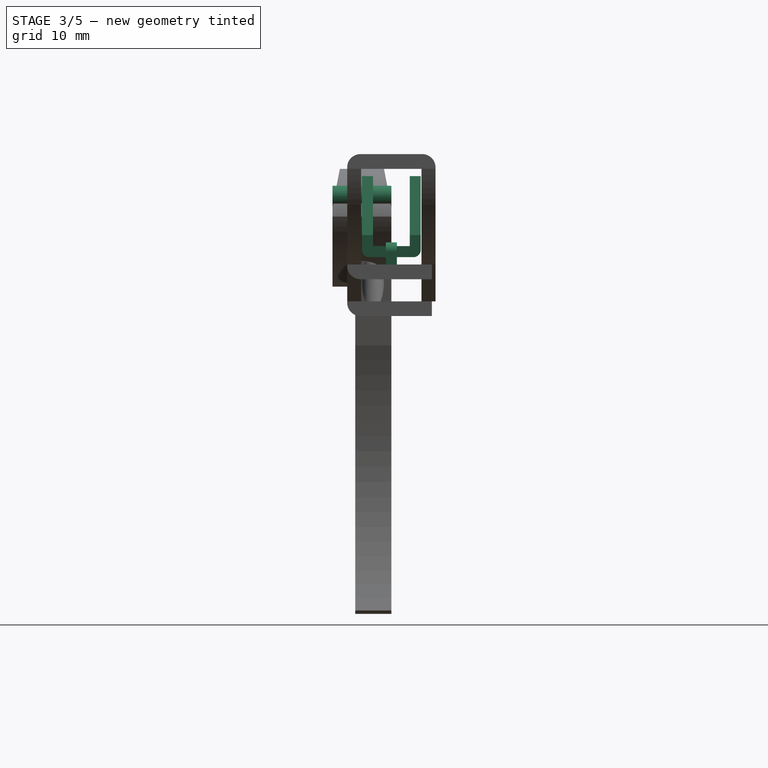
[diagram: stage 3 of 5 — right view after this stage's code; geometry added in this stage tinted green]
FEATURE [Sketcher::SketchObject] Sketch056
  ArcFitTolerance = 1e-06
  AttachmentSupport = -> [XY_Plane009]
  FullyConstrained = true
  MakeInternals = false
  MapMode = 5
  sketch-geometry (4):
    g0: LineSegment StartX=-20 StartY=4 StartZ=0 EndX=-20 EndY=-4 EndZ=0
    g1: LineSegment StartX=-20 StartY=-4 StartZ=0 EndX=22 EndY=-4 EndZ=0
    g2: LineSegment StartX=22 StartY=-4 StartZ=0 EndX=22 EndY=4 EndZ=0
    g3: LineSegment StartX=22 StartY=4 StartZ=0 EndX=-20 EndY=4 EndZ=0
  constraints (12):
    c: Coincident(g0,g1)
    c: Coincident(g1,g2)
    c: Coincident(g2,g3)
    c: Coincident(g3,g0)
    c: Vertical(g0)
    c: Vertical(g2)
    c: Horizontal(g1)
    c: Horizontal(g3)
    c: DistanceX(g3,g3) = 42
    c: DistanceY(g0,g0) = 8
    c: DistanceY(g0) = 4
    c: DistanceX(g0) = -20
FEATURE [PartDesign::Pad] Pad015
  Direction = (0,0,1)
  Length = 9
  Length2 = 2
  Profile = -> Sketch056
  ReferenceAxis = -> Sketch056 [N_Axis]
  Refine = true
  Suppressed = false
  Type = 4
FEATURE [Sketcher::SketchObject] Sketch057
  ArcFitTolerance = 1e-06
  AttachmentSupport = -> [Pad015]
  FullyConstrained = true
  MakeInternals = false
  MapMode = 5
  Placement = pos=(-20,0,0) rot=(0.57735,-0.57735,-0.57735;2.0944rad)
  sketch-geometry (4):
    g0: LineSegment StartX=-2.5 StartY=9.5 StartZ=0 EndX=-2.5 EndY=-0.5 EndZ=0
    g1: LineSegment StartX=-2.5 StartY=-0.5 StartZ=0 EndX=2.5 EndY=-0.5 EndZ=0
    g2: LineSegment StartX=2.5 StartY=-0.5 StartZ=0 EndX=2.5 EndY=9.5 EndZ=0
    g3: LineSegment StartX=2.5 StartY=9.5 StartZ=0 EndX=-2.5 EndY=9.5 EndZ=0
  constraints (12):
    c: Coincident(g0,g1)
    c: Coincident(g1,g2)
    c: Coincident(g2,g3)
    c: Coincident(g3,g0)
    c: Vertical(g0)
    c: Vertical(g2)
    c: Horizontal(g1)
    c: Horizontal(g3)
    c: DistanceX(g3,g3) = 5
    c: DistanceY(g2,g2) = 10
    c: DistanceX(g1) = 2.5
    c: DistanceY(g1) = -0.5
FEATURE [PartDesign::Pocket] Pocket011
  BaseFeature = -> Pad015
  Direction = (1,0,0)
  Length = 5
  Length2 = 5
  Profile = -> Sketch057
  ReferenceAxis = -> Sketch057 [N_Axis]
  Refine = true
  Suppressed = false
  Type = 1
FEATURE [Sketcher::SketchObject] Sketch059
  ArcFitTolerance = 1e-06
  AttachmentSupport = -> [Pocket011]
  FullyConstrained = false
  MakeInternals = false
  MapMode = 5
  Placement = pos=(0,0,-2) rot=(1,0,0;3.14159rad)
  sketch-geometry (4):
    g0: ArcOfCircle CenterX=14 CenterY=0 CenterZ=0 NormalX=0 NormalY=0 NormalZ=1 AngleXU=0 Radius=2.5 StartAngle=4.71239 EndAngle=7.85398
    g1: ArcOfCircle CenterX=-6 CenterY=3.41049e-11 CenterZ=0 NormalX=0 NormalY=0 NormalZ=1 AngleXU=0 Radius=2.5 StartAngle=1.5708 EndAngle=4.71239
    g2: LineSegment StartX=-6.00001 StartY=2.5 StartZ=0 EndX=14 EndY=2.5 EndZ=0
    g3: LineSegment StartX=14 StartY=-2.5 StartZ=0 EndX=-6.00001 EndY=-2.5 EndZ=0
  constraints (11):
    c: Diameter(g0) = 5
    c: PointOnObject(g0,g-1)
    c: DistanceX(g0) = 14
    c: Diameter(g1) = 5
    c: Coincident(g2,g1)
    c: Tangent(g3,g0) = 1.5708
    c: Coincident(g3,g1)
    c: Horizontal(g2)
    c: Horizontal(g3)
    c: DistanceX(g1) = -6
    c: Coincident(g2,g0)
FEATURE [PartDesign::Pocket] Pocket012  label="sotto"
  BaseFeature = -> Pocket011
  Direction = (0,0,1)
  Length = 2
  Length2 = 5
  Profile = -> Sketch059
  ReferenceAxis = -> Sketch059 [N_Axis]
  Refine = true
  Suppressed = false
  Type = 0
FEATURE [Sketcher::SketchObject] Sketch060
  ArcFitTolerance = 1e-06
  AttachmentSupport = -> [Pocket012]
  FullyConstrained = true
  MakeInternals = false
  MapMode = 5
  Placement = pos=(0,4,0) rot=(0,0.707107,0.707107;3.14159rad)
  sketch-geometry (1):
    g0: Circle CenterX=16 CenterY=4 CenterZ=0 NormalX=0 NormalY=0 NormalZ=1 AngleXU=0 Radius=2
  constraints (3):
    c: Diameter(g0) = 4
    c: DistanceY(g0) = 4
    c: DistanceX(g0) = 16
FEATURE [PartDesign::Hole] Hole028  label="perno"
  BaseFeature = -> Pocket012
  CustomThreadClearance = 0
  Depth = 85.3435
  DepthType = 1
  Diameter = 5
  DrillForDepth = false
  DrillPoint = 1
  DrillPointAngle = 118
  HoleCutCountersinkAngle = 90
  HoleCutCustomValues = false
  HoleCutDepth = 0
  HoleCutDiameter = 6.1
  HoleCutType = 0
  ModelThread = false
  Profile = -> Sketch060
  Refine = true
  Suppressed = false
  Tapered = false
  TaperedAngle = 90
  ThreadClass = 0
  ThreadDepth = 85.3435
  ThreadDepthType = 0
  ThreadDirection = 0
  ThreadFit = 0
  ThreadSize = 0
  ThreadType = 0
  Threaded = false
  UseCustomThreadClearance = false
FEATURE [Sketcher::SketchObject] Sketch061
  ArcFitTolerance = 1e-06
  AttachmentSupport = -> [Hole028]
  FullyConstrained = true
  MakeInternals = false
  MapMode = 5
  Placement = pos=(0,-4,0) rot=(1,0,0;1.5708rad)
  sketch-geometry (1):
    g0: Circle CenterX=3 CenterY=4 CenterZ=0 NormalX=0 NormalY=0 NormalZ=1 AngleXU=0 Radius=2.5
  constraints (3):
    c: Diameter(g0) = 5
    c: DistanceY(g0) = 4
    c: DistanceX(g0) = 3
FEATURE [PartDesign::Hole] Hole029
  BaseFeature = -> Hole028
  CustomThreadClearance = 0
  Depth = 85.3435
  DepthType = 1
  Diameter = 5
  DrillForDepth = false
  DrillPoint = 1
  DrillPointAngle = 118
  HoleCutCountersinkAngle = 90
  HoleCutCustomValues = false
  HoleCutDepth = 0
  HoleCutDiameter = 6.1
  HoleCutType = 0
  ModelThread = false
  Profile = -> Sketch061
  Refine = true
  Suppressed = false
  Tapered = false
  TaperedAngle = 90
  ThreadClass = 0
  ThreadDepth = 85.3435
  ThreadDepthType = 0
  ThreadDirection = 0
  ThreadFit = 0
  ThreadSize = 0
  ThreadType = 0
  Threaded = false
  UseCustomThreadClearance = false
FEATURE [Sketcher::SketchObject] Sketch062
  ArcFitTolerance = 1e-06
  AttachmentSupport = -> [Hole029]
  FullyConstrained = true
  MakeInternals = false
  MapMode = 5
  Placement = pos=(0,-4,0) rot=(1,0,0;1.5708rad)
  sketch-geometry (1):
    g0: Circle CenterX=14 CenterY=6.2 CenterZ=0 NormalX=0 NormalY=0 NormalZ=1 AngleXU=0 Radius=1.5
  constraints (3):
    c: Diameter(g0) = 3
    c: DistanceY(g0) = 6.2
    c: DistanceX(g0) = 14
FEATURE [PartDesign::Hole] Hole030
  BaseFeature = -> Hole029
  CustomThreadClearance = 0
  Depth = 85.3435
  DepthType = 1
  Diameter = 3
  DrillForDepth = false
  DrillPoint = 1
  DrillPointAngle = 118
  HoleCutCountersinkAngle = 90
  HoleCutCustomValues = false
  HoleCutDepth = 0
  HoleCutDiameter = 6.1
  HoleCutType = 0
  ModelThread = false
  Profile = -> Sketch062
  Refine = true
  Suppressed = false
  Tapered = false
  TaperedAngle = 90
  ThreadClass = 0
  ThreadDepth = 85.3435
  ThreadDepthType = 0
  ThreadDirection = 0
  ThreadFit = 0
  ThreadSize = 0
  ThreadType = 0
  Threaded = false
  UseCustomThreadClearance = false
FEATURE [Sketcher::SketchObject] Sketch066
  ArcFitTolerance = 1e-06
  FullyConstrained = false
  MakeInternals = false
  MapMode = 5
  Placement = pos=(0,-4,0) rot=(1,0,0;1.5708rad)
  sketch-geometry (4):
    g0: LineSegment StartX=16 StartY=9 StartZ=0 EndX=19 EndY=1 EndZ=0
    g1: LineSegment StartX=16 StartY=9 StartZ=0 EndX=23.1345 EndY=11.3008 EndZ=0
    g2: LineSegment StartX=19 StartY=1 StartZ=0 EndX=22.904 EndY=1 EndZ=0
    g3: LineSegment StartX=22.904 StartY=1 StartZ=0 EndX=23.1345 EndY=11.3008 EndZ=0
  constraints (9):
    c: DistanceY(g0) = 1
    c: DistanceY(g0) = 9
    c: DistanceX(g0) = 16
    c: DistanceX(g0) = 19
    c: Coincident(g1,g0)
    c: Coincident(g2,g0)
    c: Horizontal(g2)
    c: Coincident(g3,g2)
    c: Coincident(g3,g1)
FEATURE [PartDesign::Pocket] Pocket014
  BaseFeature = -> Hole030
  Direction = (0,1,-2e-16)
  Length = 5
  Length2 = 5
  Profile = -> Sketch066
  ReferenceAxis = -> Sketch066 [N_Axis]
  Refine = true
  Suppressed = false
  Type = 1
FEATURE [PartDesign::Body] Body010  label="barra_lamiera2"
  AllowCompound = false
  Group = -> [Sketch064,Pad016,Sketch065,Pocket013,Sketch067,Pocket015,Sketch068,Hole032]
  Origin = -> Origin010
  Placement = pos=(2,2.5,0) rot=(0,0,1;0rad)
  Tip = -> Hole032
FEATURE [PartDesign::Fillet] Fillet004
  Base = -> Pocket014 [Edge10,Edge9]
  BaseFeature = -> Pocket014
  Radius = 1
  Refine = true
  SupportTransform = false
  Suppressed = false
  UseAllEdges = false
FEATURE [Sketcher::SketchObject] Sketch069
  ArcFitTolerance = 1e-06
  AttachmentSupport = -> [XZ_Plane011]
  FullyConstrained = true
  MakeInternals = false
  MapMode = 5
  Placement = pos=(0,0,0) rot=(1,0,0;1.5708rad)
  sketch-geometry (1):
    g0: Circle CenterX=12 CenterY=6.2 CenterZ=0 NormalX=0 NormalY=0 NormalZ=1 AngleXU=0 Radius=1.5
  constraints (3):
    c: Diameter(g0) = 3
    c: DistanceY(g0) = 6.2
    c: DistanceX(g0) = 12
FEATURE [PartDesign::Pad] Pad017
  Direction = (0,-1,2e-16)
  Length = 8
  Length2 = 10
  Placement = pos=(0,0,0) rot=(1,0,0;1.5708rad)
  Profile = -> Sketch069
  ReferenceAxis = -> Sketch069 [N_Axis]
  Refine = true
  Suppressed = false
  Type = 0
FEATURE [PartDesign::Fillet] Fillet005
  Base = -> Fillet004 [Edge6,Edge7]
  BaseFeature = -> Fillet004
  Radius = 4
  Refine = true
  SupportTransform = false
  Suppressed = false
  UseAllEdges = false
FEATURE [Sketcher::SketchObject] Sketch073
  ArcFitTolerance = 1e-06
  AttachmentSupport = -> [Pocket017]
  FullyConstrained = true
  MakeInternals = false
  MapMode = 5
  Placement = pos=(0,0,-3) rot=(0,0,1;0rad)
  sketch-geometry (4):
    g0: LineSegment StartX=30 StartY=0.75 StartZ=0 EndX=30 EndY=-0.75 EndZ=0
    g1: LineSegment StartX=30 StartY=-0.75 StartZ=0 EndX=32.5 EndY=-0.75 EndZ=0
    g2: LineSegment StartX=32.5 StartY=-0.75 StartZ=0 EndX=32.5 EndY=0.75 EndZ=0
    g3: LineSegment StartX=32.5 StartY=0.75 StartZ=0 EndX=30 EndY=0.75 EndZ=0
  constraints (12):
    c: Coincident(g0,g1)
    c: Coincident(g1,g2)
    c: Coincident(g2,g3)
    c: Coincident(g3,g0)
    c: Vertical(g0)
    c: Vertical(g2)
    c: Horizontal(g1)
    c: Horizontal(g3)
    c: Distance(g0,g2) = 2.5
    c: Distance(g1,g3) = 1.5
    c: DistanceY(g0) = 0.75
    c: DistanceX(g0) = 30
FEATURE [PartDesign::Pad] Pad019
  BaseFeature = -> Pocket017
  Direction = (0,0,1)
  Length = 3
  Length2 = 10
  Profile = -> Sketch073
  ReferenceAxis = -> Sketch073 [N_Axis]
  Refine = true
  Suppressed = false
  Type = 0
FEATURE [Sketcher::SketchObject] Sketch074
  ArcFitTolerance = 1e-06
  AttachmentSupport = -> [Pad019]
  ExternalGeometry = -> [Pad019]
  FullyConstrained = false
  MakeInternals = false
  MapMode = 5
  Placement = pos=(0,-0.75,0) rot=(1,0,0;1.5708rad)
  sketch-geometry (4):
    g0: ArcOfCircle CenterX=31.25 CenterY=-1.25 CenterZ=0 NormalX=0 NormalY=0 NormalZ=1 AngleXU=0 Radius=1.25 StartAngle=0 EndAngle=3.14159
    g1: LineSegment StartX=29.1094 StartY=1.51293 StartZ=0 EndX=30 EndY=-1.25 EndZ=0
    g2: LineSegment StartX=32.5 StartY=-1.25 StartZ=0 EndX=33.7341 EndY=1.59182 EndZ=0
    g3: LineSegment StartX=33.7341 StartY=1.59182 StartZ=0 EndX=29.1094 EndY=1.51293 EndZ=0
  constraints (8):
    c: Coincident(g2,g3)
    c: Coincident(g0,g1)
    c: DistanceY(g0) = -1.25
    c: DistanceY(g0) = -1.25
    c: DistanceX(g0) = 32.5
    c: Coincident(g2,g0)
    c: Coincident(g3,g1)
    c: DistanceY(g0) = -1.25
FEATURE [PartDesign::Pocket] Pocket018
  BaseFeature = -> Pad019
  Direction = (0,1,-2e-16)
  Length = 2
  Length2 = 5
  Profile = -> Sketch074
  ReferenceAxis = -> Sketch074 [N_Axis]
  Refine = true
  Suppressed = false
  Type = 0
FEATURE [PartDesign::Fillet] Fillet006
  Base = -> Pocket018 [Edge150]
  BaseFeature = -> Pocket018
  Radius = 1
  Refine = true
  SupportTransform = false
  Suppressed = false
  UseAllEdges = false
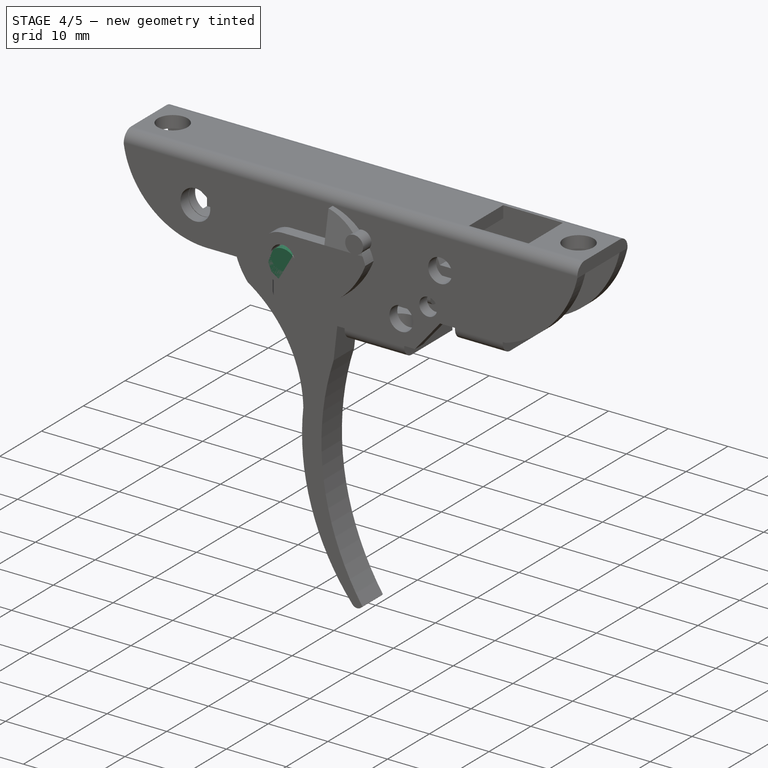
[diagram: stage 4 of 5 — iso view after this stage's code; geometry added in this stage tinted green]
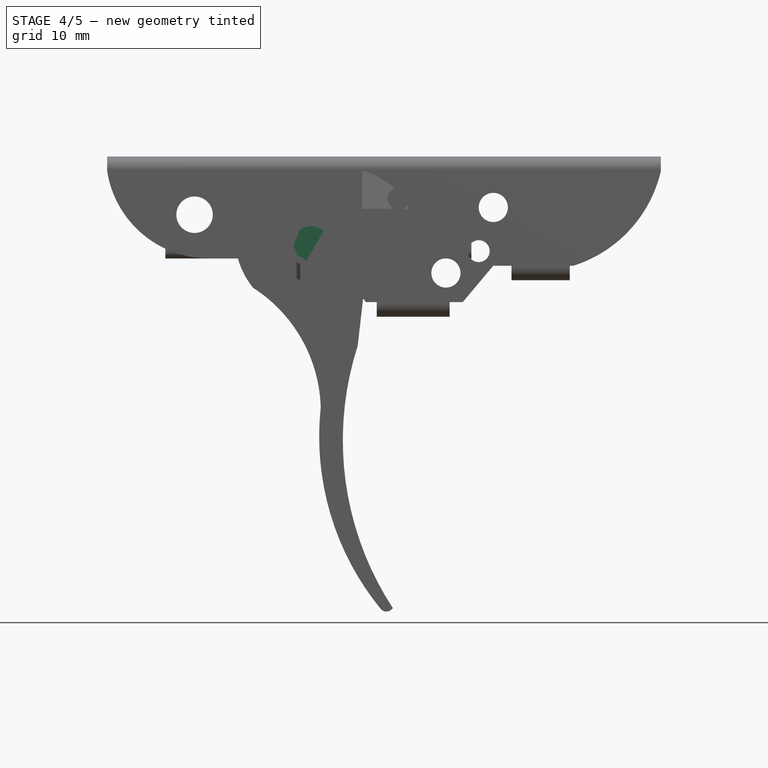
[diagram: stage 4 of 5 — front view after this stage's code; geometry added in this stage tinted green]
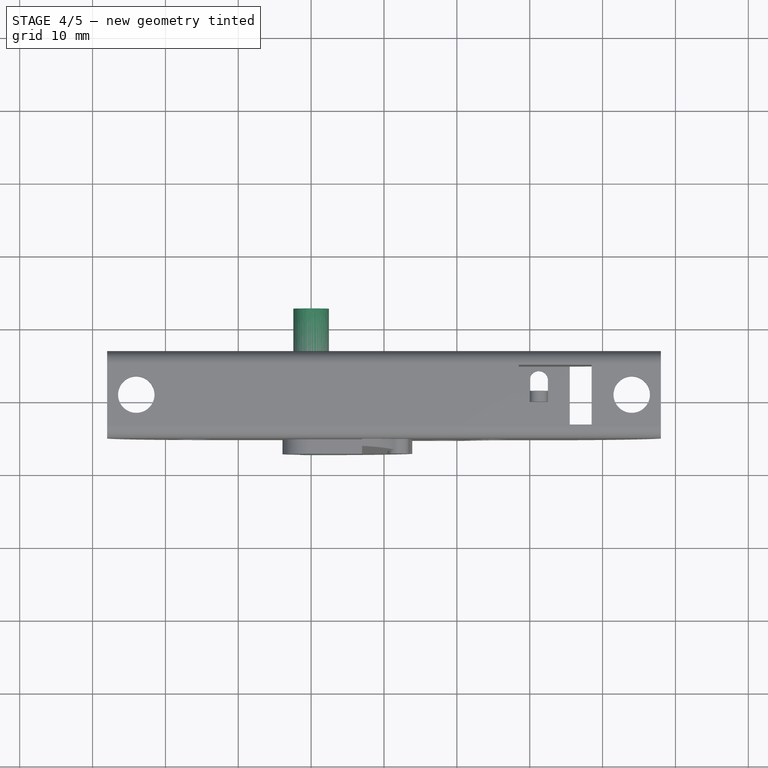
[diagram: stage 4 of 5 — top view after this stage's code; geometry added in this stage tinted green]
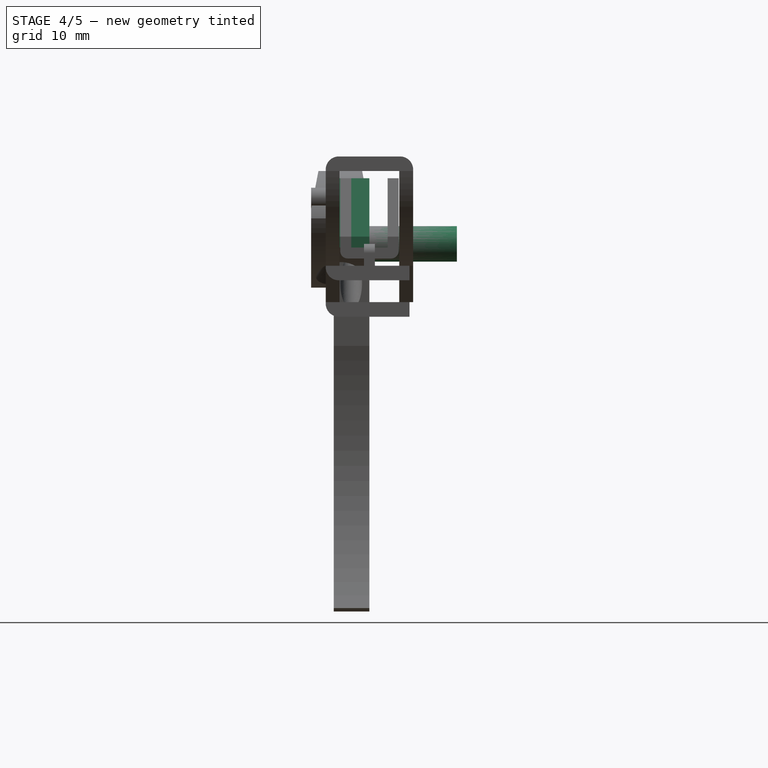
[diagram: stage 4 of 5 — right view after this stage's code; geometry added in this stage tinted green]
FEATURE [Sketcher::SketchObject] Sketch018
  ArcFitTolerance = 1e-06
  AttachmentSupport = -> [XZ_Plane005]
  FullyConstrained = true
  MakeInternals = false
  MapMode = 5
  Placement = pos=(0,0,0) rot=(1,0,0;1.5708rad)
  sketch-geometry (1):
    g0: Circle CenterX=0 CenterY=0 CenterZ=0 NormalX=0 NormalY=0 NormalZ=1 AngleXU=0 Radius=2.43
  constraints (2):
    c: Diameter(g0) = 4.86
    c: Coincident(g0,g-1)
FEATURE [PartDesign::Pad] Pad007
  Direction = (0,-1,2e-16)
  Length = 12
  Length2 = 10
  Placement = pos=(0,0,0) rot=(1,0,0;1.5708rad)
  Profile = -> Sketch018
  ReferenceAxis = -> Sketch018 [N_Axis]
  Refine = true
  Reversed = true
  Suppressed = false
  Type = 0
FEATURE [Sketcher::SketchObject] Sketch019
  ArcFitTolerance = 1e-06
  AttachmentSupport = -> [Pad007]
  FullyConstrained = true
  MakeInternals = false
  MapMode = 5
  Placement = pos=(0,0,0) rot=(1,0,0;1.5708rad)
  sketch-geometry (1):
    g0: Circle CenterX=0 CenterY=0 CenterZ=0 NormalX=0 NormalY=0 NormalZ=1 AngleXU=0 Radius=4
  constraints (2):
    c: Diameter(g0) = 8
    c: Coincident(g0,g-1)
FEATURE [PartDesign::Pad] Pad008
  BaseFeature = -> Pad007
  Direction = (0,-1,2e-16)
  Length = 1
  Length2 = 10
  Placement = pos=(0,0,0) rot=(1,0,0;1.5708rad)
  Profile = -> Sketch019
  ReferenceAxis = -> Sketch019 [N_Axis]
  Refine = true
  Suppressed = false
  Type = 0
FEATURE [PartDesign::Chamfer] Chamfer
  Angle = 45
  Base = -> Pad008 [Edge4]
  BaseFeature = -> Pad008
  ChamferType = 0
  FlipDirection = false
  Placement = pos=(0,0,0) rot=(1,0,0;1.5708rad)
  Refine = true
  Size = 0.4
  Size2 = 1
  SupportTransform = false
  Suppressed = false
  UseAllEdges = false
FEATURE [PartDesign::Body] Body005  label="perno_barra"
  AllowCompound = false
  Group = -> [Sketch018,Pad007,Sketch019,Pad008,Chamfer]
  Origin = -> Origin005
  Placement = pos=(-16,-6,4) rot=(0,0,1;0rad)
  Tip = -> Chamfer
FEATURE [Sketcher::SketchObject] Sketch020
  ArcFitTolerance = 1e-06
  AttachmentSupport = -> [XZ_Plane006]
  FullyConstrained = true
  MakeInternals = false
  MapMode = 5
  Placement = pos=(0,0,0) rot=(1,0,0;1.5708rad)
  sketch-geometry (1):
    g0: Circle CenterX=0 CenterY=0 CenterZ=0 NormalX=0 NormalY=0 NormalZ=1 AngleXU=0 Radius=1.93
  constraints (2):
    c: Diameter(g0) = 3.86
    c: Coincident(g0,g-1)
FEATURE [PartDesign::Pad] Pad009
  Direction = (0,-1,2e-16)
  Length = 12
  Length2 = 10
  Placement = pos=(0,0,0) rot=(1,0,0;1.5708rad)
  Profile = -> Sketch020
  ReferenceAxis = -> Sketch020 [N_Axis]
  Refine = true
  Reversed = true
  Suppressed = false
  Type = 0
FEATURE [Sketcher::SketchObject] Sketch021
  ArcFitTolerance = 1e-06
  AttachmentSupport = -> [Pad009]
  FullyConstrained = true
  MakeInternals = false
  MapMode = 5
  Placement = pos=(0,0,0) rot=(1,0,0;1.5708rad)
  sketch-geometry (1):
    g0: Circle CenterX=0 CenterY=0 CenterZ=0 NormalX=0 NormalY=0 NormalZ=1 AngleXU=0 Radius=3
  constraints (2):
    c: Diameter(g0) = 6
    c: Coincident(g0,g-1)
FEATURE [PartDesign::Pad] Pad010
  BaseFeature = -> Pad009
  Direction = (0,-1,2e-16)
  Length = 1
  Length2 = 10
  Placement = pos=(0,0,0) rot=(1,0,0;1.5708rad)
  Profile = -> Sketch021
  ReferenceAxis = -> Sketch021 [N_Axis]
  Refine = true
  Suppressed = false
  Type = 0
FEATURE [PartDesign::Chamfer] Chamfer001
  Angle = 45
  Base = -> Pad010 [Edge4]
  BaseFeature = -> Pad010
  ChamferType = 0
  FlipDirection = false
  Placement = pos=(0,0,0) rot=(1,0,0;1.5708rad)
  Refine = true
  Size = 0.4
  Size2 = 1
  SupportTransform = false
  Suppressed = false
  UseAllEdges = false
FEATURE [PartDesign::Body] Body006  label="perno_dente"
  AllowCompound = false
  Group = -> [Sketch020,Pad009,Sketch021,Pad010,Chamfer001]
  Origin = -> Origin006
  Placement = pos=(25,-6,5) rot=(0,0,1;0rad)
  Tip = -> Chamfer001
FEATURE [Sketcher::SketchObject] Sketch022
  ArcFitTolerance = 1e-06
  AttachmentSupport = -> [XZ_Plane007]
  FullyConstrained = true
  MakeInternals = false
  MapMode = 5
  Placement = pos=(0,0,0) rot=(1,0,0;1.5708rad)
  sketch-geometry (1):
    g0: Circle CenterX=0 CenterY=0 CenterZ=0 NormalX=0 NormalY=0 NormalZ=1 AngleXU=0 Radius=2.43
  constraints (2):
    c: Diameter(g0) = 4.86
    c: Coincident(g0,g-1)
FEATURE [PartDesign::Pad] Pad011
  Direction = (0,-1,2e-16)
  Length = 8
  Length2 = 10
  Placement = pos=(0,0,0) rot=(1,0,0;1.5708rad)
  Profile = -> Sketch022
  ReferenceAxis = -> Sketch022 [N_Axis]
  Refine = true
  Suppressed = false
  Type = 0
FEATURE [Sketcher::SketchObject] Sketch064
  ArcFitTolerance = 1e-06
  AttachmentSupport = -> [XZ_Plane010]
  FullyConstrained = true
  MakeInternals = false
  MapMode = 5
  Placement = pos=(0,0,0) rot=(1,0,0;1.5708rad)
  sketch-geometry (4):
    g0: LineSegment StartX=9.5 StartY=9 StartZ=0 EndX=9.5 EndY=-0.5 EndZ=0
    g1: LineSegment StartX=9.5 StartY=-0.5 StartZ=0 EndX=21 EndY=-0.5 EndZ=0
    g2: LineSegment StartX=21 StartY=9 StartZ=0 EndX=9.5 EndY=9 EndZ=0
    g3: LineSegment StartX=21 StartY=9 StartZ=0 EndX=21 EndY=-0.5 EndZ=0
  constraints (12):
    c: Coincident(g0,g1)
    c: Coincident(g2,g0)
    c: Vertical(g0)
    c: Horizontal(g1)
    c: Horizontal(g2)
    c: DistanceX(g2,g2) = 11.5
    c: DistanceY(g1,g2) = 9.5
    c: DistanceY(g1) = -0.5
    c: Coincident(g3,g2)
    c: Coincident(g3,g1)
    c: Vertical(g3)
    c: DistanceX(g1) = 21
FEATURE [PartDesign::Pad] Pad016
  Direction = (0,-1,2e-16)
  Length = 4.9
  Length2 = 10
  Placement = pos=(0,0,0) rot=(1,0,0;1.5708rad)
  Profile = -> Sketch064
  ReferenceAxis = -> Sketch064 [N_Axis]
  Refine = true
  Suppressed = false
  Type = 0
FEATURE [Sketcher::SketchObject] Sketch065
  ArcFitTolerance = 1e-06
  AttachmentSupport = -> [Pad016]
  FullyConstrained = true
  MakeInternals = false
  MapMode = 5
  Placement = pos=(0,-2e-16,-0.5) rot=(1,0,0;3.14159rad)
  sketch-geometry (1):
    g0: Circle CenterX=12.2 CenterY=2.4 CenterZ=0 NormalX=0 NormalY=0 NormalZ=1 AngleXU=0 Radius=2.4
  constraints (3):
    c: Diameter(g0) = 4.8
    c: Tangent(g0,g-1)
    c: DistanceX(g0) = 12.2
FEATURE [PartDesign::Pocket] Pocket013
  BaseFeature = -> Pad016
  Direction = (0,0,1)
  Length = 3
  Length2 = 5
  Placement = pos=(0,0,0) rot=(1,0,0;1.5708rad)
  Profile = -> Sketch065
  ReferenceAxis = -> Sketch065 [N_Axis]
  Refine = true
  Suppressed = false
  Type = 0
FEATURE [Sketcher::SketchObject] Sketch067
  ArcFitTolerance = 1e-06
  AttachmentSupport = -> [Pocket013]
  FullyConstrained = false
  MakeInternals = false
  MapMode = 5
  Placement = pos=(0,-4.9,0) rot=(1,0,0;1.5708rad)
  sketch-geometry (4):
    g0: LineSegment StartX=14 StartY=9 StartZ=0 EndX=17 EndY=1 EndZ=0
    g1: LineSegment StartX=17 StartY=1 StartZ=0 EndX=23.3209 EndY=1 EndZ=0
    g2: LineSegment StartX=23.3209 StartY=1 StartZ=0 EndX=27.9839 EndY=13.2506 EndZ=0
    g3: LineSegment StartX=27.9839 StartY=13.2506 StartZ=0 EndX=14 EndY=9 EndZ=0
  constraints (9):
    c: Coincident(g0,g1)
    c: Coincident(g1,g2)
    c: Coincident(g2,g3)
    c: Coincident(g3,g0)
    c: DistanceX(g0) = 14
    c: DistanceY(g0) = 9
    c: DistanceX(g0) = 17
    c: DistanceY(g0) = 1
    c: DistanceY(g1) = 1
FEATURE [PartDesign::Pocket] Pocket015
  BaseFeature = -> Pocket013
  Direction = (0,1,-2e-16)
  Length = 5
  Length2 = 5
  Placement = pos=(0,0,0) rot=(1,0,0;1.5708rad)
  Profile = -> Sketch067
  ReferenceAxis = -> Sketch067 [N_Axis]
  Refine = true
  Suppressed = false
  Type = 1
FEATURE [Sketcher::SketchObject] Sketch068
  ArcFitTolerance = 1e-06
  AttachmentSupport = -> [Pocket015]
  FullyConstrained = true
  MakeInternals = false
  MapMode = 5
  Placement = pos=(0,-4.9,0) rot=(1,0,0;1.5708rad)
  sketch-geometry (1):
    g0: Circle CenterX=12 CenterY=6.2 CenterZ=0 NormalX=0 NormalY=0 NormalZ=1 AngleXU=0 Radius=1.5
  constraints (3):
    c: Diameter(g0) = 3
    c: DistanceY(g0) = 6.2
    c: DistanceX(g0) = 12
FEATURE [PartDesign::Hole] Hole032
  BaseFeature = -> Pocket015
  CustomThreadClearance = 0
  Depth = 32.5245
  DepthType = 1
  Diameter = 3
  DrillForDepth = false
  DrillPoint = 1
  DrillPointAngle = 118
  HoleCutCountersinkAngle = 90
  HoleCutCustomValues = false
  HoleCutDepth = 0
  HoleCutDiameter = 6.1
  HoleCutType = 0
  ModelThread = false
  Placement = pos=(0,0,0) rot=(1,0,0;1.5708rad)
  Profile = -> Sketch068
  Refine = true
  Suppressed = false
  Tapered = false
  TaperedAngle = 90
  ThreadClass = 0
  ThreadDepth = 32.5245
  ThreadDepthType = 0
  ThreadDirection = 0
  ThreadFit = 0
  ThreadSize = 0
  ThreadType = 0
  Threaded = false
  UseCustomThreadClearance = false
FEATURE [PartDesign::Pad] Pad018
  BaseFeature = -> Pad017
  Direction = (0,-1,2e-16)
  Length = 8
  Length2 = 10
  Placement = pos=(0,0,0) rot=(1,0,0;1.5708rad)
  Profile = -> Sketch069
  ReferenceAxis = -> Sketch069 [N_Axis]
  Refine = true
  Suppressed = false
  Type = 0
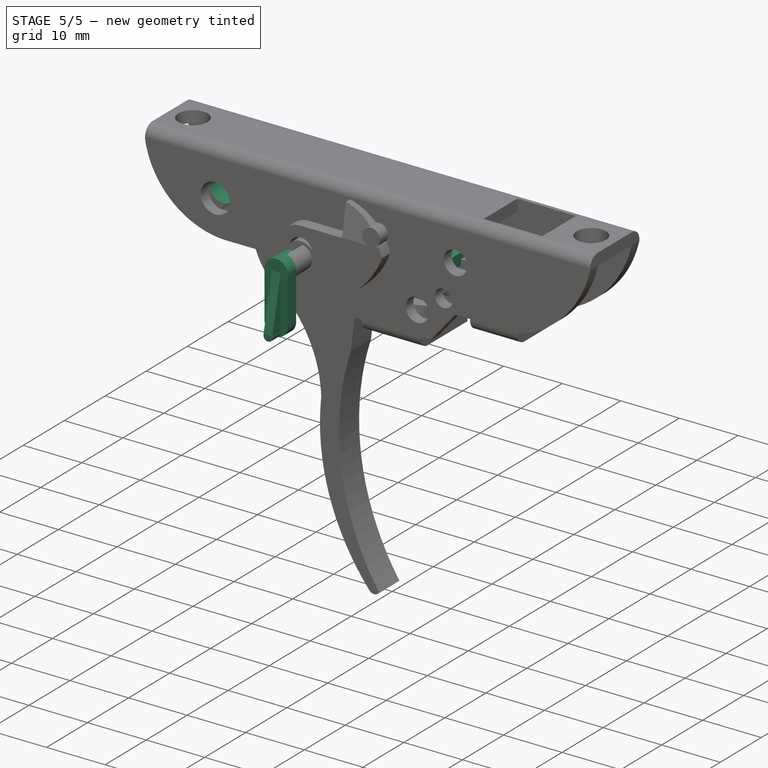
[diagram: stage 5 of 5 — iso view after this stage's code; geometry added in this stage tinted green]
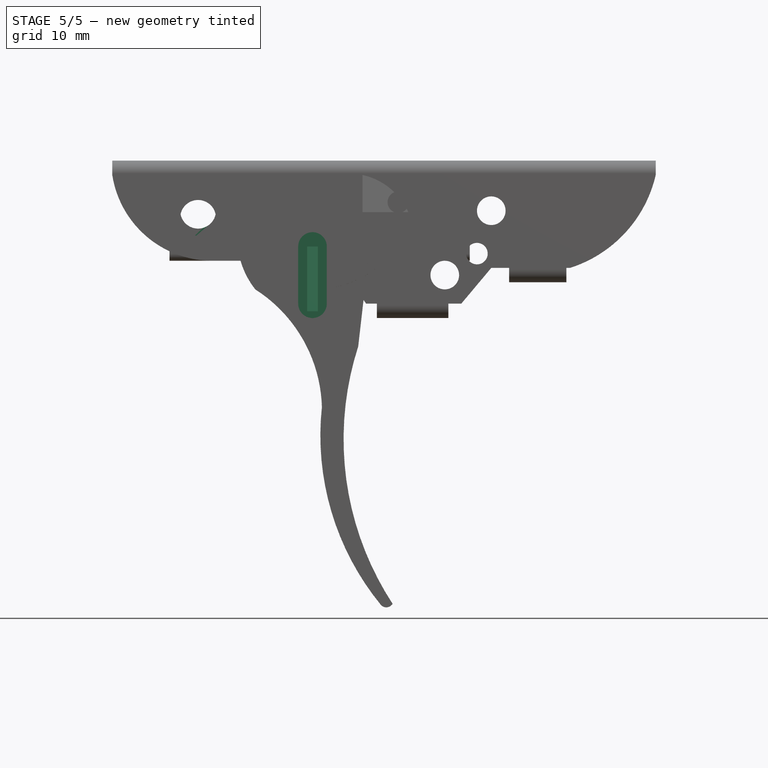
[diagram: stage 5 of 5 — front view after this stage's code; geometry added in this stage tinted green]
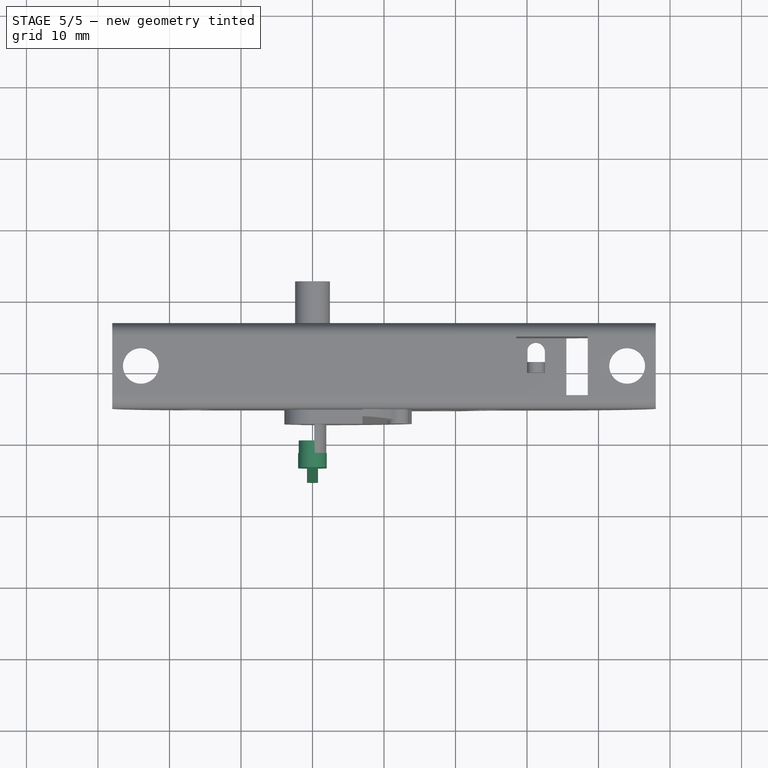
[diagram: stage 5 of 5 — top view after this stage's code; geometry added in this stage tinted green]
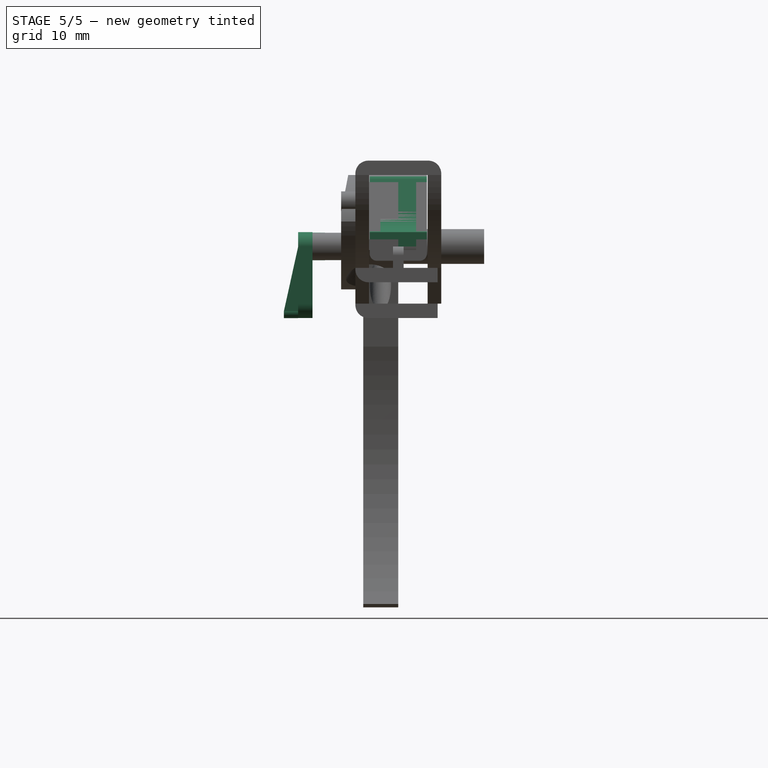
[diagram: stage 5 of 5 — right view after this stage's code; geometry added in this stage tinted green]
FEATURE [Sketcher::SketchObject] Sketch
  ArcFitTolerance = 1e-06
  AttachmentSupport = -> [XY_Plane]
  FullyConstrained = true
  MakeInternals = false
  MapMode = 5
  sketch-geometry (8):
    g0: LineSegment StartX=-20 StartY=4 StartZ=0 EndX=-20 EndY=-4 EndZ=0
    g1: LineSegment StartX=-20 StartY=-4 StartZ=0 EndX=20 EndY=-4 EndZ=0
    g2: LineSegment StartX=20 StartY=-4 StartZ=0 EndX=20 EndY=4 EndZ=0
    g3: LineSegment StartX=20 StartY=4 StartZ=0 EndX=-20 EndY=4 EndZ=0
    g4: LineSegment StartX=-12 StartY=3 StartZ=0 EndX=-12 EndY=-3 EndZ=0
    g5: LineSegment StartX=-12 StartY=-3 StartZ=0 EndX=8.5 EndY=-3 EndZ=0
    g6: LineSegment StartX=8.5 StartY=-3 StartZ=0 EndX=8.5 EndY=3 EndZ=0
    g7: LineSegment StartX=8.5 StartY=3 StartZ=0 EndX=-12 EndY=3 EndZ=0
  constraints (24):
    c: Coincident(g0,g1)
    c: Coincident(g1,g2)
    c: Coincident(g2,g3)
    c: Coincident(g3,g0)
    c: Vertical(g0)
    c: Vertical(g2)
    c: Horizontal(g1)
    c: Horizontal(g3)
    c: DistanceX(g3,g3) = 40
    c: DistanceY(g2,g2) = 8
    c: DistanceY(g2) = 4
    c: DistanceX(g2) = 20
    c: Coincident(g4,g5)
    c: Coincident(g5,g6)
    c: Coincident(g6,g7)
    c: Coincident(g7,g4)
    c: Vertical(g4)
    c: Vertical(g6)
    c: Horizontal(g5)
    c: Horizontal(g7)
    c: DistanceY(g6,g6) = 6
    c: DistanceX(g7,g7) = 20.5
    c: DistanceX(g0,g4) = 8
    c: DistanceY(g4) = 3
FEATURE [PartDesign::Pad] Pad
  Direction = (0,0,1)
  Length = 10
  Length2 = 10
  Profile = -> Sketch
  ReferenceAxis = -> Sketch [N_Axis]
  Refine = true
  Suppressed = false
  Type = 0
FEATURE [Sketcher::SketchObject] Sketch001
  ArcFitTolerance = 1e-06
  AttachmentSupport = -> [Pad]
  FullyConstrained = true
  MakeInternals = false
  MapMode = 5
  Placement = pos=(0,-4,0) rot=(1,0,0;1.5708rad)
  sketch-geometry (1):
    g0: Circle CenterX=-16 CenterY=5 CenterZ=0 NormalX=0 NormalY=0 NormalZ=1 AngleXU=0 Radius=3
  constraints (3):
    c: Diameter(g0) = 6
    c: DistanceY(g0) = 5
    c: DistanceX(g0) = -16
FEATURE [PartDesign::Hole] Hole
  BaseFeature = -> Pad
  CustomThreadClearance = 0
  Depth = 25
  DepthType = 0
  Diameter = 5
  DrillForDepth = false
  DrillPoint = 1
  DrillPointAngle = 118
  HoleCutCountersinkAngle = 90
  HoleCutCustomValues = false
  HoleCutDepth = 0
  HoleCutDiameter = 6.1
  HoleCutType = 0
  ModelThread = false
  Profile = -> Sketch001
  Refine = true
  Suppressed = false
  Tapered = false
  TaperedAngle = 90
  ThreadClass = 0
  ThreadDepth = 25
  ThreadDepthType = 0
  ThreadDirection = 0
  ThreadFit = 0
  ThreadSize = 0
  ThreadType = 0
  Threaded = false
  UseCustomThreadClearance = false
FEATURE [PartDesign::Fillet] Fillet
  Base = -> Hole [Edge4,Edge3]
  BaseFeature = -> Hole
  Radius = 2
  Refine = true
  SupportTransform = false
  Suppressed = false
  UseAllEdges = false
FEATURE [Sketcher::SketchObject] Sketch002
  ArcFitTolerance = 1e-06
  AttachmentSupport = -> [Fillet]
  FullyConstrained = false
  MakeInternals = false
  MapMode = 5
  Placement = pos=(0,-4,0) rot=(1,0,0;1.5708rad)
  sketch-geometry (4):
    g0: LineSegment StartX=12.6865 StartY=11.2302 StartZ=0 EndX=15.316 EndY=5 EndZ=0
    g1: LineSegment StartX=12.6865 StartY=11.2302 StartZ=0 EndX=26.0759 EndY=10.8323 EndZ=0
    g2: LineSegment StartX=26.0759 StartY=10.8323 StartZ=0 EndX=20 EndY=2 EndZ=0
    g3: ArcOfCircle CenterX=19.6302 CenterY=6.57918 CenterZ=0 NormalX=0 NormalY=0 NormalZ=1 AngleXU=0 Radius=4.59409 StartAngle=3.49249 EndAngle=4.79297
  constraints (7):
    c: DistanceX(g2) = 20
    c: DistanceY(g2) = 2
    c: DistanceY(g0) = 5
    c: Coincident(g1,g2)
    c: Coincident(g3,g0)
    c: Coincident(g3,g2)
    c: Coincident(g1,g0)
FEATURE [PartDesign::Pocket] Pocket
  BaseFeature = -> Fillet
  Direction = (0,1,-2e-16)
  Length = 5
  Length2 = 5
  Profile = -> Sketch002
  ReferenceAxis = -> Sketch002 [N_Axis]
  Refine = true
  Suppressed = false
  Type = 1
FEATURE [Sketcher::SketchObject] Sketch004
  ArcFitTolerance = 1e-06
  AttachmentSupport = -> [Pocket]
  FullyConstrained = true
  MakeInternals = false
  MapMode = 5
  Placement = pos=(0,-4,0) rot=(1,0,0;1.5708rad)
  sketch-geometry (1):
    g0: Circle CenterX=3 CenterY=5 CenterZ=0 NormalX=0 NormalY=0 NormalZ=1 AngleXU=0 Radius=2.5
  constraints (3):
    c: Diameter(g0) = 5
    c: DistanceX(g0) = 3
    c: DistanceY(g0) = 5
FEATURE [PartDesign::Hole] Hole001
  BaseFeature = -> Pocket
  CustomThreadClearance = 0
  Depth = 25
  DepthType = 0
  Diameter = 5
  DrillForDepth = false
  DrillPoint = 1
  DrillPointAngle = 118
  HoleCutCountersinkAngle = 90
  HoleCutCustomValues = false
  HoleCutDepth = 0
  HoleCutDiameter = 6.1
  HoleCutType = 0
  ModelThread = false
  Profile = -> Sketch004
  Refine = true
  Suppressed = false
  Tapered = false
  TaperedAngle = 90
  ThreadClass = 0
  ThreadDepth = 25
  ThreadDepthType = 0
  ThreadDirection = 0
  ThreadFit = 0
  ThreadSize = 0
  ThreadType = 0
  Threaded = false
  UseCustomThreadClearance = false
FEATURE [Sketcher::SketchObject] Sketch005
  ArcFitTolerance = 1e-06
  AttachmentSupport = -> [XZ_Plane003]
  FullyConstrained = false
  MakeInternals = false
  MapMode = 5
  Placement = pos=(0,0,0) rot=(1,0,0;1.5708rad)
  sketch-geometry (12):
    g0: LineSegment StartX=2e-16 StartY=4.8 StartZ=0 EndX=7 EndY=4.8 EndZ=0
    g1: LineSegment StartX=7 StartY=4.8 StartZ=0 EndX=7 EndY=10 EndZ=0
    g2: LineSegment [constr] StartX=-12.049 StartY=5 StartZ=0 EndX=-12.049 EndY=-5 EndZ=0
    g3: LineSegment [constr] StartX=-12.049 StartY=-5 StartZ=0 EndX=21.3796 EndY=-5 EndZ=0
    g4: LineSegment [constr] StartX=21.3796 StartY=-5 StartZ=0 EndX=21.3796 EndY=5 EndZ=0
    g5: LineSegment [constr] StartX=21.3796 StartY=5 StartZ=0 EndX=-12.049 EndY=5 EndZ=0
    g6: Circle CenterX=0 CenterY=1 CenterZ=0 NormalX=0 NormalY=0 NormalZ=1 AngleXU=0 Radius=2
    g7: ArcOfCircle CenterX=0 CenterY=0.876027 CenterZ=0 NormalX=0 NormalY=0 NormalZ=1 AngleXU=0 Radius=3.92397 StartAngle=1.5708 EndAngle=4.17757
    g8: ArcOfCircle CenterX=5 CenterY=1 CenterZ=0 NormalX=0 NormalY=0 NormalZ=1 AngleXU=0 Radius=9.21954 StartAngle=0.274601 EndAngle=1.35213
    g9: ArcOfCircle CenterX=0 CenterY=8.82848 CenterZ=0 NormalX=0 NormalY=0 NormalZ=1 AngleXU=0 Radius=14.8622 StartAngle=4.77972 EndAngle=5.9165
    g10: LineSegment StartX=-2 StartY=-2.5 StartZ=0 EndX=-2 EndY=-4.8 EndZ=0
    g11: LineSegment StartX=-2 StartY=-4.8 StartZ=0 EndX=1 EndY=-6 EndZ=0
  constraints (37):
    c: Horizontal(g0)
    c: Coincident(g0,g1)
    c: Vertical(g1)
    c: Coincident(g2,g3)
    c: Coincident(g3,g4)
    c: Coincident(g4,g5)
    c: Coincident(g5,g2)
    c: Vertical(g2)
    c: Vertical(g4)
    c: Horizontal(g3)
    c: Horizontal(g5)
    c: DistanceY(g4,g4) = 10
    c: DistanceY(g2) = 5
    c: Diameter(g6) = 4
    c: DistanceY(g6) = 1
    c: DistanceX(g6) = 0
    c: DistanceY(g7) = -2.5
    c: Coincident(g7,g0)
    c: DistanceX(g7) = 0
    c: DistanceY(g0) = 4.8
    c: DistanceX(g0) = 0
    c: Coincident(g8,g1)
    c: DistanceY(g8) = 1
    c: DistanceX(g8) = 5
    c: DistanceY(g1) = 10
    c: DistanceX(g1) = 7
    c: DistanceY(g8) = 3.5
    c: DistanceY(g9) = -6
    c: Coincident(g9,g8)
    c: DistanceX(g9) = 0
    c: Vertical(g10)
    c: Coincident(g7,g10)
    c: DistanceX(g7) = -2
    c: Coincident(g11,g10)
    c: Coincident(g11,g9)
    c: DistanceX(g9) = 1
    c: DistanceY(g10) = -4.8
FEATURE [Sketcher::SketchObject] Sketch006
  ArcFitTolerance = 1e-06
  AttachmentSupport = -> [Hole001]
  FullyConstrained = true
  MakeInternals = false
  MapMode = 5
  Placement = pos=(0,0,0) rot=(1,0,0;3.14159rad)
  sketch-geometry (1):
    g0: Circle CenterX=11.5 CenterY=0 CenterZ=0 NormalX=0 NormalY=0 NormalZ=1 AngleXU=0 Radius=2.5
  constraints (3):
    c: Diameter(g0) = 5
    c: DistanceY(g0) = 0
    c: DistanceX(g0) = 11.5
FEATURE [PartDesign::Pocket] Pocket001
  BaseFeature = -> Hole001
  Direction = (0,0,1)
  Length = 6
  Length2 = 5
  Profile = -> Sketch006
  ReferenceAxis = -> Sketch006 [N_Axis]
  Refine = true
  Suppressed = false
  Type = 0
FEATURE [PartDesign::Fillet] Fillet001
  Base = -> Pocket001 [Edge32]
  BaseFeature = -> Pocket001
  Radius = 1
  Refine = true
  SupportTransform = false
  Suppressed = false
  UseAllEdges = false
FEATURE [PartDesign::Body] Body008  label="supp_lamiera"
  AllowCompound = false
  Group = -> [Sketch035,Pad012,Sketch036,Pocket007,Sketch037,Pocket008,Sketch039,Pad013,Sketch040,Pad014,Sketch041,Pocket010,Sketch050,Hole022,Sketch051,Sketch052,Hole024,Sketch053,Hole025,Sketch054,Hole026,Sketch055,Hole027,Fillet003,Sketch070,Hole033,Pocket017,Sketch073,Pad019,Sketch074,Pocket018,Fillet006]
  Origin = -> Origin008
  Tip = -> Fillet006
FEATURE [Sketcher::SketchObject] Sketch075
  ArcFitTolerance = 1e-06
  AttachmentSupport = -> [XZ_Plane012]
  FullyConstrained = true
  MakeInternals = false
  MapMode = 5
  Placement = pos=(0,0,0) rot=(1,0,0;1.5708rad)
  sketch-geometry (1):
    g0: Circle CenterX=0 CenterY=0 CenterZ=0 NormalX=0 NormalY=0 NormalZ=1 AngleXU=0 Radius=1.93
  constraints (2):
    c: Diameter(g0) = 3.86
    c: Coincident(g0,g-1)
FEATURE [PartDesign::Pad] Pad020
  Direction = (0,-1,2e-16)
  Length = 12
  Length2 = 10
  Placement = pos=(0,0,0) rot=(1,0,0;1.5708rad)
  Profile = -> Sketch075
  ReferenceAxis = -> Sketch075 [N_Axis]
  Refine = true
  Suppressed = false
  Type = 0
FEATURE [Sketcher::SketchObject] Sketch076
  ArcFitTolerance = 1e-06
  AttachmentSupport = -> [Pad020]
  FullyConstrained = true
  MakeInternals = false
  MapMode = 5
  Placement = pos=(0,-12,0) rot=(1,0,0;1.5708rad)
  sketch-geometry (4):
    g0: LineSegment StartX=-2 StartY=0 StartZ=0 EndX=-2 EndY=-8 EndZ=0
    g1: LineSegment StartX=2 StartY=-8 StartZ=0 EndX=2 EndY=0 EndZ=0
    g2: ArcOfCircle CenterX=0 CenterY=0 CenterZ=0 NormalX=0 NormalY=0 NormalZ=1 AngleXU=0 Radius=2 StartAngle=0 EndAngle=3.14159
    g3: ArcOfCircle CenterX=-3.74432e-11 CenterY=-8 CenterZ=0 NormalX=0 NormalY=0 NormalZ=1 AngleXU=0 Radius=2 StartAngle=3.14159 EndAngle=6.28319
  constraints (13):
    c: Vertical(g0)
    c: Vertical(g1)
    c: Distance(g0,g1) = 4
    c: Distance(g0,g0) = 8
    c: PointOnObject(g0,g-1)
    c: Coincident(g2,g-1)
    c: Coincident(g2,g0)
    c: Coincident(g2,g1)
    c: Horizontal(g0,g3)
    c: Horizontal(g1,g2)
    c: Coincident(g3,g1)
    c: Coincident(g3,g0)
    c: Horizontal(g1,g0)
FEATURE [PartDesign::Pad] Pad021
  BaseFeature = -> Pad020
  Direction = (0,-1,2e-16)
  Length = 2
  Length2 = 10
  Placement = pos=(0,0,0) rot=(1,0,0;1.5708rad)
  Profile = -> Sketch076
  ReferenceAxis = -> Sketch076 [N_Axis]
  Refine = true
  Suppressed = false
  Type = 0
FEATURE [Sketcher::SketchObject] Sketch077
  ArcFitTolerance = 1e-06
  AttachmentSupport = -> [Pad021]
  ExternalGeometry = -> [Pad021]
  FullyConstrained = false
  MakeInternals = false
  MapMode = 5
  Placement = pos=(0,-14,0) rot=(1,0,0;1.5708rad)
  sketch-geometry (4):
    g0: LineSegment StartX=-0.75 StartY=0 StartZ=0 EndX=-0.75 EndY=-9.07119 EndZ=0
    g1: LineSegment StartX=0.75 StartY=-9.05422 StartZ=0 EndX=0.75 EndY=0 EndZ=0
    g2: LineSegment StartX=0.75 StartY=0 StartZ=0 EndX=-0.75 EndY=0 EndZ=0
    g3: ArcOfCircle CenterX=0.00211814 CenterY=-9.25 CenterZ=0 NormalX=0 NormalY=0 NormalZ=1 AngleXU=0 Radius=0.773082 StartAngle=2.90818 EndAngle=6.53922
  constraints (11):
    c: Coincident(g1,g2)
    c: Coincident(g2,g0)
    c: Vertical(g0)
    c: Vertical(g1)
    c: Horizontal(g2)
    c: Distance(g0,g1) = 1.5
    c: PointOnObject(g0,g-1)
    c: DistanceX(g0) = -0.75
    c: Coincident(g3,g0)
    c: DistanceY(g3) = -9.25
    c: Coincident(g1,g3)
FEATURE [PartDesign::Pad] Pad022
  BaseFeature = -> Pad021
  Direction = (0,-1,2e-16)
  Length = 2
  Length2 = 10
  Placement = pos=(0,0,0) rot=(1,0,0;1.5708rad)
  Profile = -> Sketch077
  ReferenceAxis = -> Sketch077 [N_Axis]
  Refine = true
  Suppressed = false
  Type = 0
FEATURE [Sketcher::SketchObject] Sketch078
  ArcFitTolerance = 1e-06
  AttachmentSupport = -> [Pad022]
  ExternalGeometry = -> [Pad022]
  FullyConstrained = false
  MakeInternals = false
  MapMode = 5
  Placement = pos=(0.75,0,0) rot=(0.707107,0,0.707107;3.14159rad)
  sketch-geometry (3):
    g0: LineSegment StartX=1.72999 StartY=18.8645 StartZ=0 EndX=-9.05422 EndY=16 EndZ=0
    g1: LineSegment StartX=-9.05422 StartY=16 StartZ=0 EndX=3.6e-15 EndY=14 EndZ=0
    g2: LineSegment StartX=3.6e-15 StartY=14 StartZ=0 EndX=1.72999 EndY=18.8645 EndZ=0
  constraints (5):
    c: Coincident(g0,g-3)
    c: Coincident(g0,g1)
    c: Coincident(g1,g-4)
    c: Coincident(g1,g2)
    c: Coincident(g2,g0)
FEATURE [PartDesign::Pocket] Pocket019
  BaseFeature = -> Pad022
  Direction = (-1,0,2e-16)
  Length = 5
  Length2 = 5
  Placement = pos=(0,0,0) rot=(1,0,0;1.5708rad)
  Profile = -> Sketch078
  ReferenceAxis = -> Sketch078 [N_Axis]
  Refine = true
  Suppressed = false
  Type = 1
FEATURE [Sketcher::SketchObject] Sketch079
  ArcFitTolerance = 1e-06
  AttachmentSupport = -> [Pocket019]
  FullyConstrained = false
  MakeInternals = false
  MapMode = 5
  Placement = pos=(0,0,0) rot=(-1,0,0;1.5708rad)
  sketch-geometry (4):
    g0: LineSegment StartX=0.25 StartY=2.24788 StartZ=0 EndX=0.25 EndY=-2.56589 EndZ=0
    g1: LineSegment StartX=0.25 StartY=-2.56589 StartZ=0 EndX=-2.91018 EndY=-2.56589 EndZ=0
    g2: LineSegment StartX=-2.91018 StartY=-2.56589 StartZ=0 EndX=-2.91018 EndY=2.24788 EndZ=0
    g3: LineSegment StartX=-2.91018 StartY=2.24788 StartZ=0 EndX=0.25 EndY=2.24788 EndZ=0
  constraints (9):
    c: Coincident(g0,g1)
    c: Coincident(g1,g2)
    c: Coincident(g2,g3)
    c: Coincident(g3,g0)
    c: Vertical(g0)
    c: Vertical(g2)
    c: Horizontal(g1)
    c: Horizontal(g3)
    c: DistanceX(g0) = 0.25
FEATURE [PartDesign::Pocket] Pocket020
  BaseFeature = -> Pocket019
  Direction = (0,-1,-2e-16)
  Length = 10.25
  Length2 = -1.75
  Placement = pos=(0,0,0) rot=(1,0,0;1.5708rad)
  Profile = -> Sketch079
  ReferenceAxis = -> Sketch079 [N_Axis]
  Refine = true
  Suppressed = false
  Type = 4
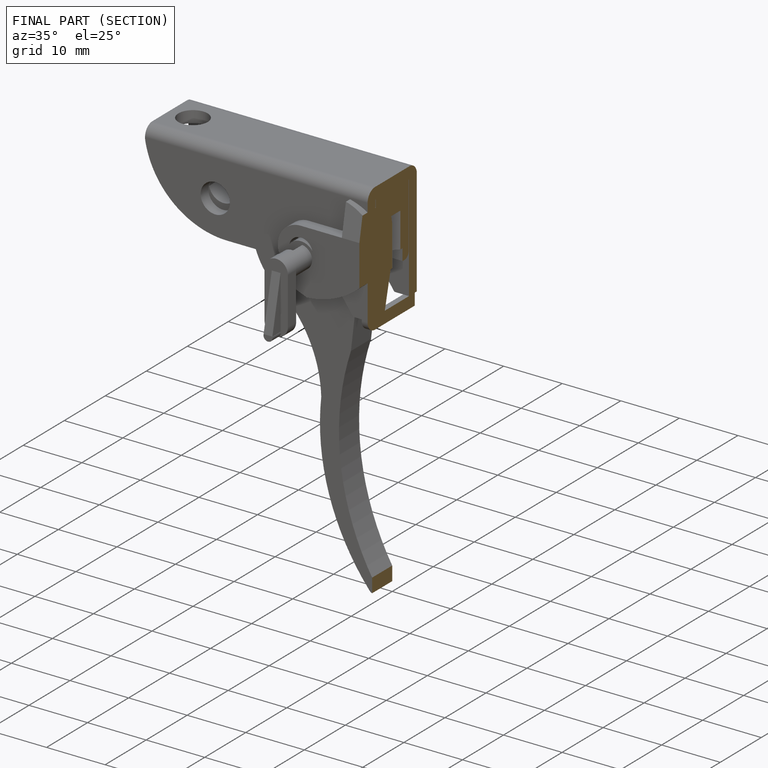
[diagram: finished part — half-section view (interior)]
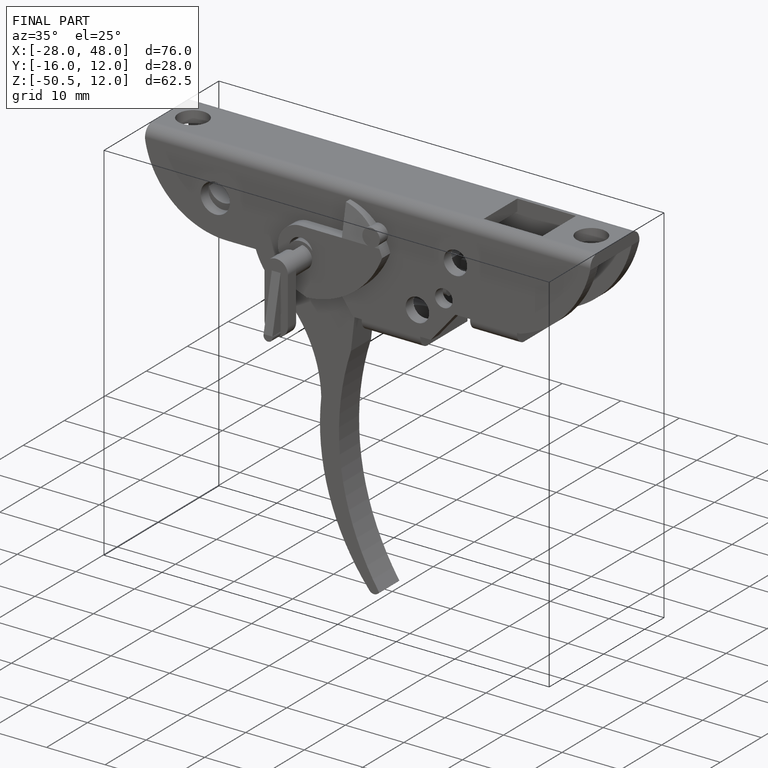
[diagram: finished part — iso view with bounding-box wireframe]
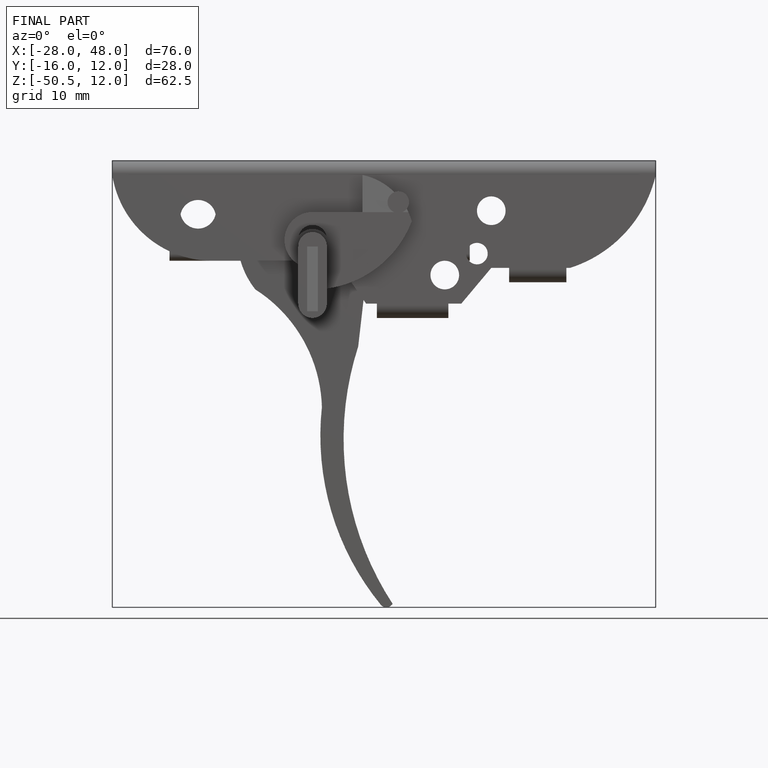
[diagram: finished part — front view with bounding-box wireframe]
